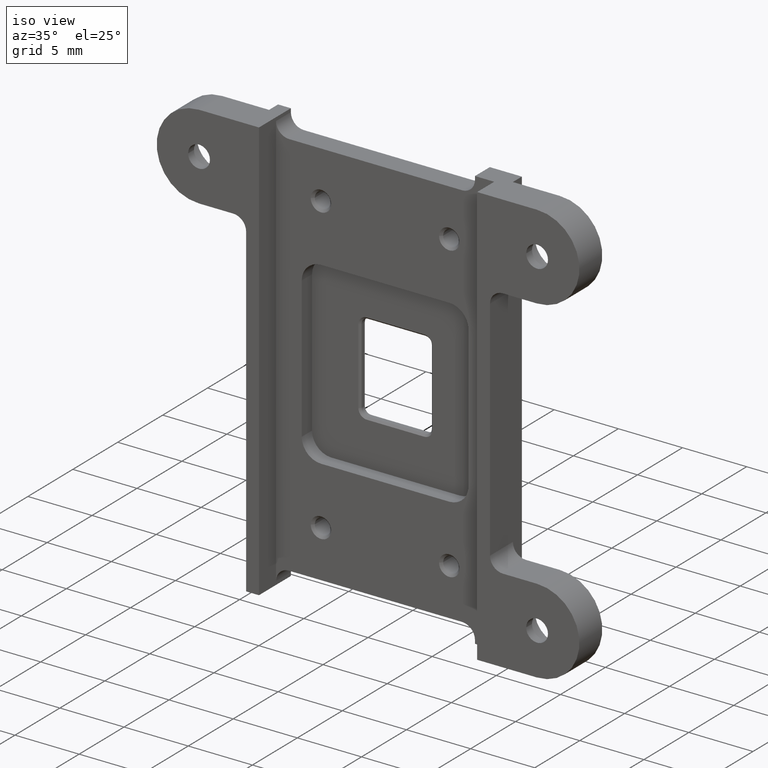
[diagram: clean part render]
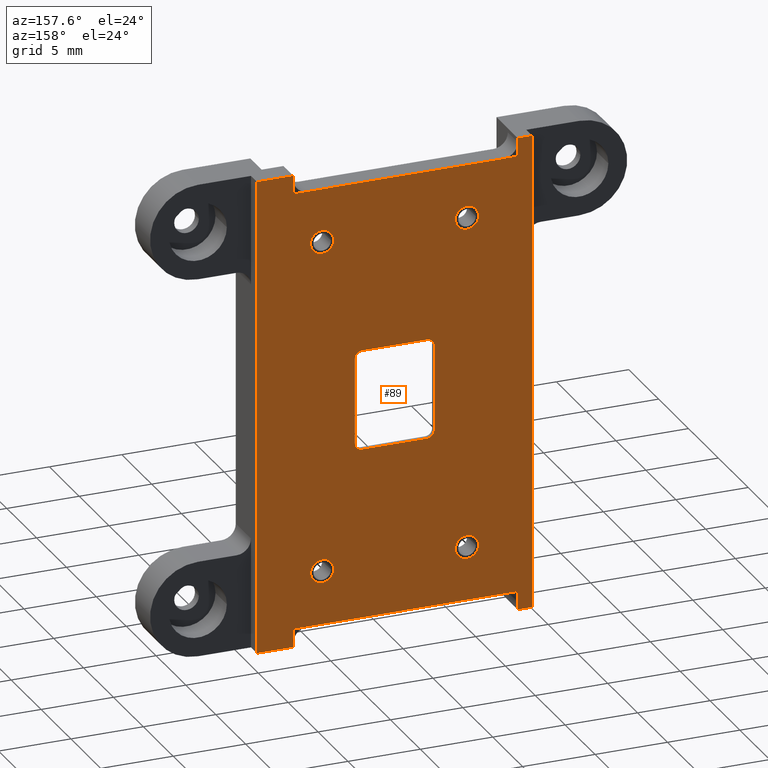
[diagram: tour spotlight — one face highlighted and labeled with its STEP entity id]
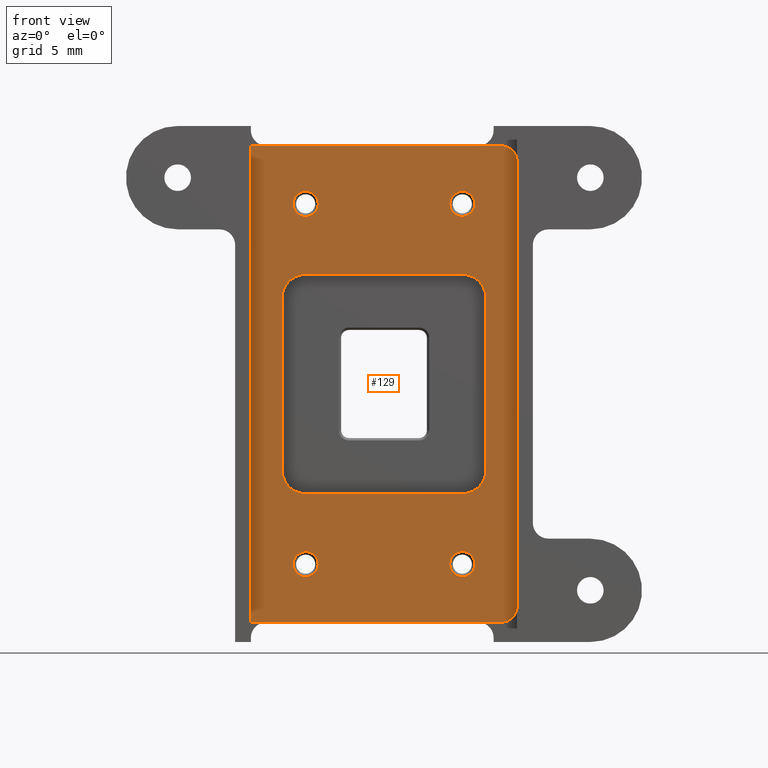
[diagram: tour spotlight — one face highlighted and labeled with its STEP entity id]
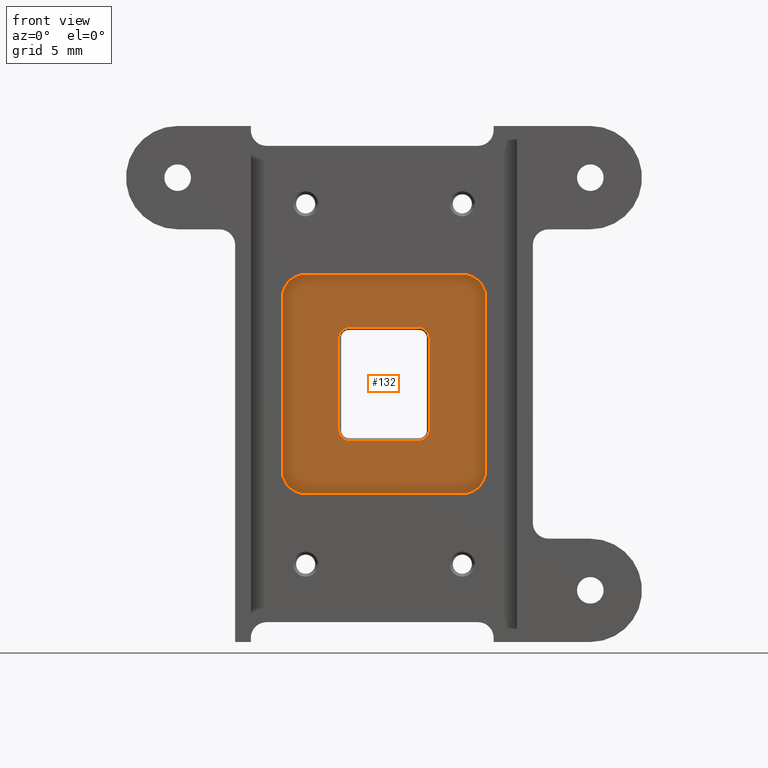
[diagram: tour spotlight — one face highlighted and labeled with its STEP entity id]
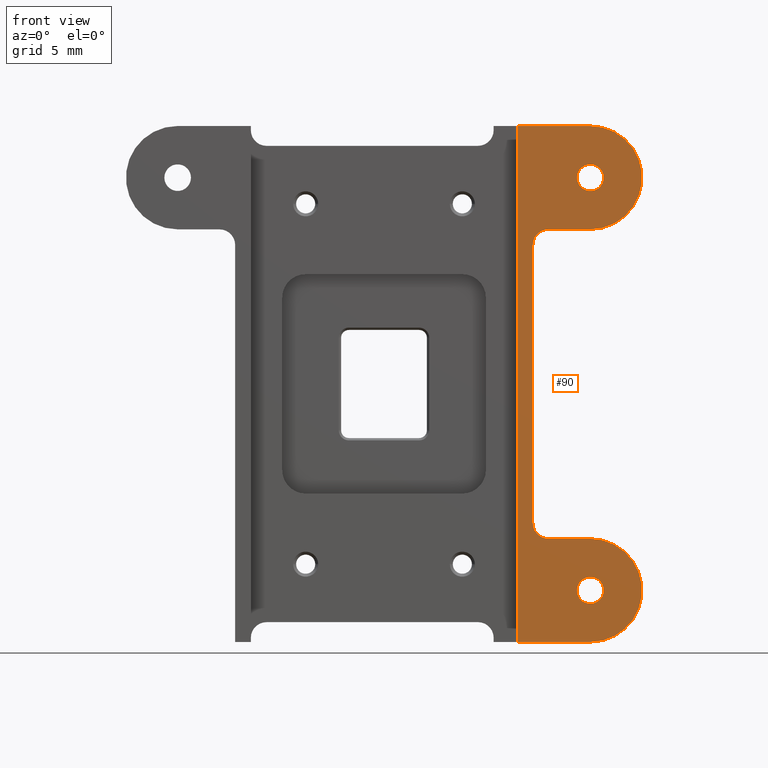
[diagram: tour spotlight — one face highlighted and labeled with its STEP entity id]
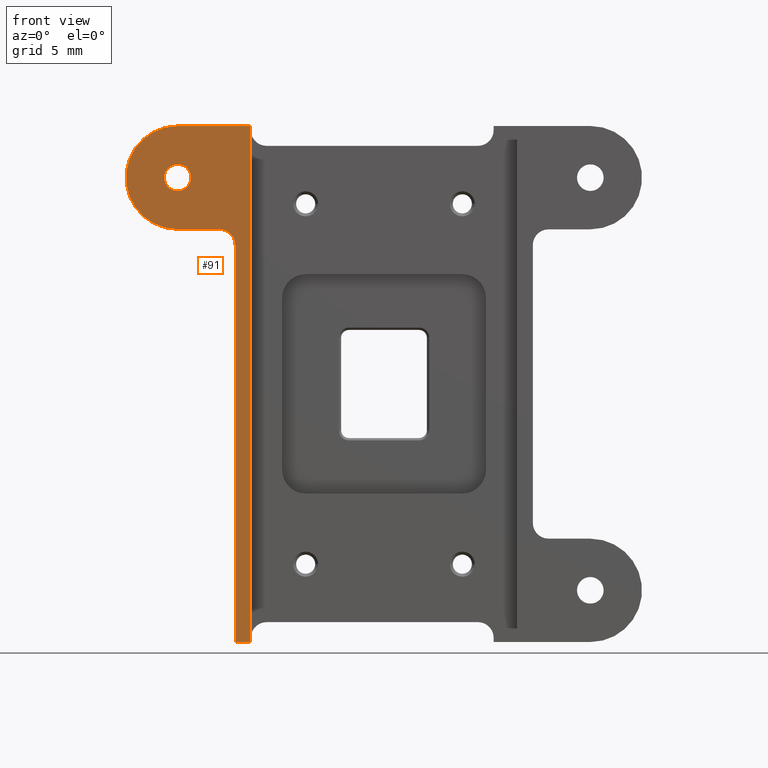
[diagram: tour spotlight — one face highlighted and labeled with its STEP entity id]
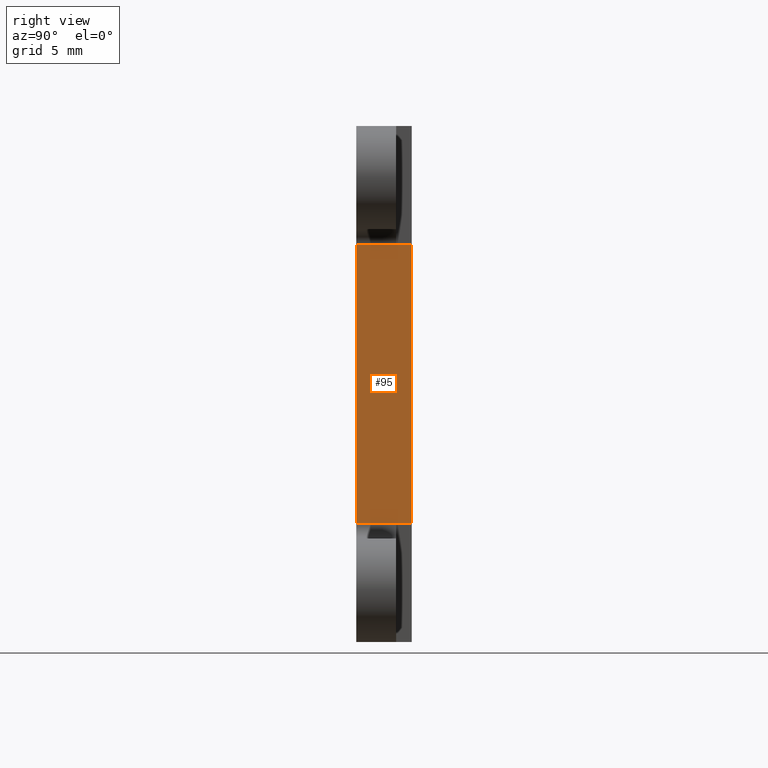
[diagram: tour spotlight — one face highlighted and labeled with its STEP entity id]
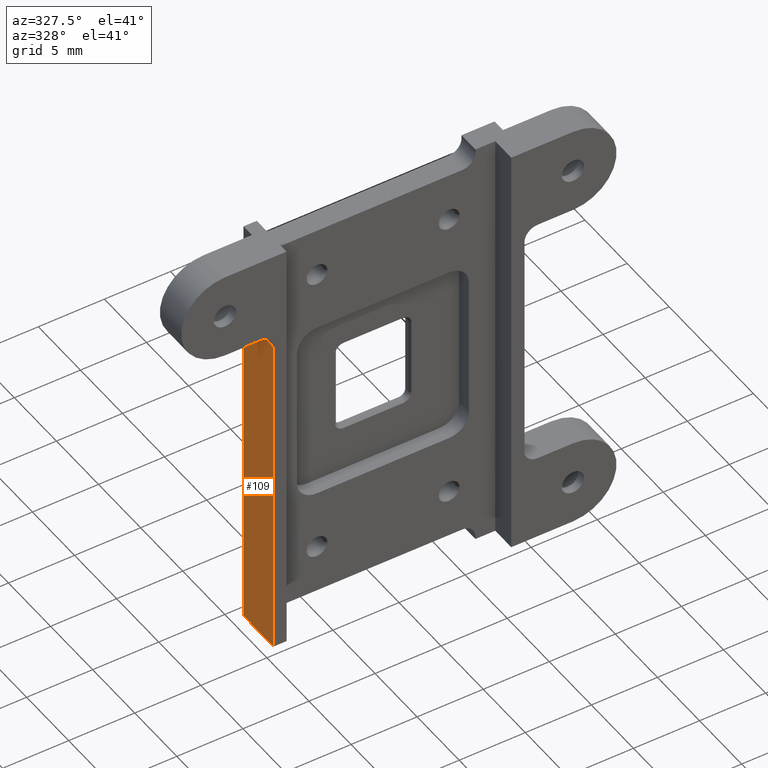
[diagram: tour spotlight — one face highlighted and labeled with its STEP entity id]
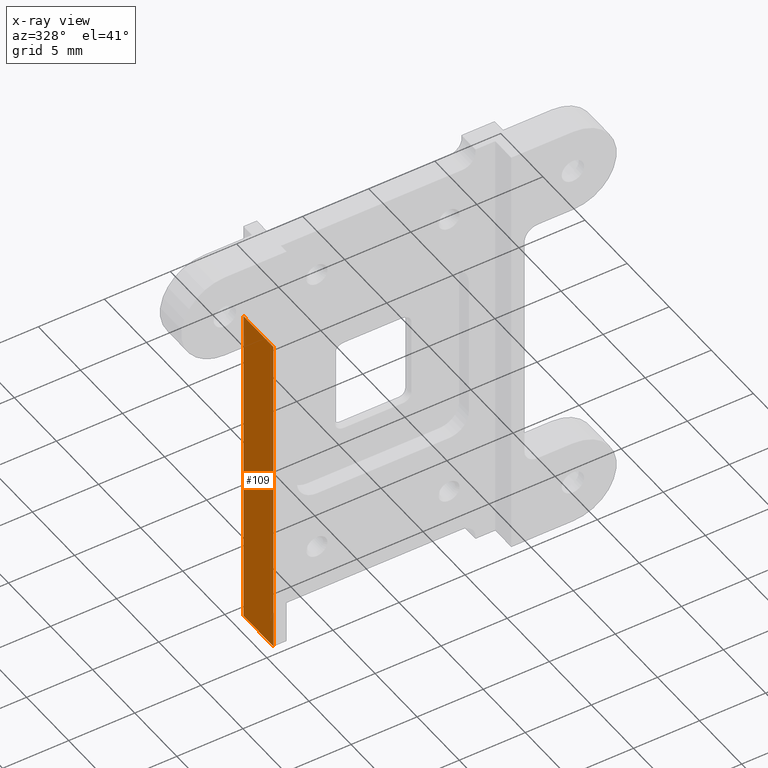
[diagram: x-ray of the same camera — body ghosted, this tour face saturated]
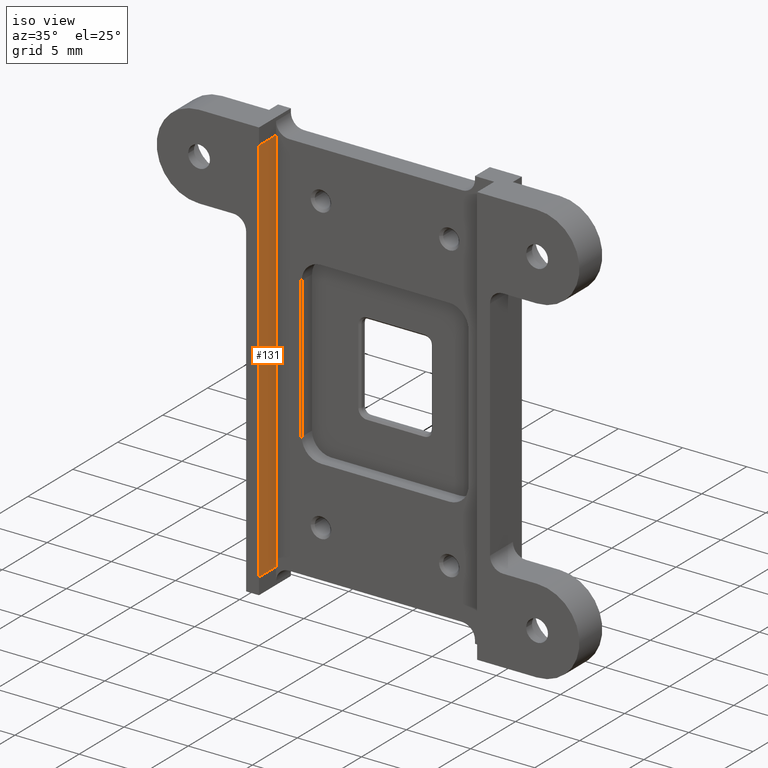
[diagram: tour spotlight — one face highlighted and labeled with its STEP entity id]
A machine part: a face-by-face anatomy tour. The part has 111 B-rep faces; the first image is the clean iso view, then the 8 largest visible faces are spotlighted one at a time (largest first), each with its STEP entity span.

Face 1 — auxiliary view, entity #89. In plain terms, the highlighted planar face has unit normal (0, 1, 0).
Definition (entity closure, byte-faithful):
#89=ADVANCED_FACE('',(#311,#312,#313,#314,#315,#200),#1040,.T.);
#200=FACE_OUTER_BOUND('',#340,.F.);
#311=FACE_BOUND('',#335,.F.);
#312=FACE_BOUND('',#336,.F.);
#313=FACE_BOUND('',#337,.F.);
#314=FACE_BOUND('',#338,.F.);
#315=FACE_BOUND('',#339,.F.);
#335=EDGE_LOOP('',(#470,#471,#472,#473,#474,#475,#476,#477));
#336=EDGE_LOOP('',(#478,#479));
#337=EDGE_LOOP('',(#480,#481));
#338=EDGE_LOOP('',(#482,#483));
#339=EDGE_LOOP('',(#484,#485));
#340=EDGE_LOOP('',(#486,#487,#488,#489,#490,#491,#492,#493,#494,#495,#496,
#497,#498,#499,#500,#501,#502,#503,#504,#505,#506,#507,#508));
#470=ORIENTED_EDGE('',*,*,#1621,.T.);
#471=ORIENTED_EDGE('',*,*,#1628,.T.);
#472=ORIENTED_EDGE('',*,*,#1627,.T.);
#473=ORIENTED_EDGE('',*,*,#1626,.T.);
#474=ORIENTED_EDGE('',*,*,#1625,.T.);
#475=ORIENTED_EDGE('',*,*,#1624,.T.);
#476=ORIENTED_EDGE('',*,*,#1623,.T.);
#477=ORIENTED_EDGE('',*,*,#1622,.T.);
#478=ORIENTED_EDGE('',*,*,#1602,.T.);
#479=ORIENTED_EDGE('',*,*,#1603,.T.);
#480=ORIENTED_EDGE('',*,*,#1600,.T.);
#481=ORIENTED_EDGE('',*,*,#1601,.T.);
#482=ORIENTED_EDGE('',*,*,#1598,.T.);
#483=ORIENTED_EDGE('',*,*,#1599,.T.);
#484=ORIENTED_EDGE('',*,*,#1596,.T.);
#485=ORIENTED_EDGE('',*,*,#1597,.T.);
#486=ORIENTED_EDGE('',*,*,#1629,.F.);
#487=ORIENTED_EDGE('',*,*,#1606,.T.);
#488=ORIENTED_EDGE('',*,*,#1630,.F.);
#489=ORIENTED_EDGE('',*,*,#1631,.F.);
#490=ORIENTED_EDGE('',*,*,#1613,.F.);
#491=ORIENTED_EDGE('',*,*,#1611,.F.);
#492=ORIENTED_EDGE('',*,*,#1612,.F.);
#493=ORIENTED_EDGE('',*,*,#1610,.F.);
#494=ORIENTED_EDGE('',*,*,#1608,.F.);
#495=ORIENTED_EDGE('',*,*,#1609,.F.);
#496=ORIENTED_EDGE('',*,*,#1632,.F.);
#497=ORIENTED_EDGE('',*,*,#1604,.T.);
#498=ORIENTED_EDGE('',*,*,#1633,.F.);
#499=ORIENTED_EDGE('',*,*,#1634,.F.);
#500=ORIENTED_EDGE('',*,*,#1635,.F.);
#501=ORIENTED_EDGE('',*,*,#1620,.F.);
#502=ORIENTED_EDGE('',*,*,#1618,.F.);
#503=ORIENTED_EDGE('',*,*,#1619,.F.);
#504=ORIENTED_EDGE('',*,*,#1617,.F.);
#505=ORIENTED_EDGE('',*,*,#1615,.F.);
#506=ORIENTED_EDGE('',*,*,#1616,.F.);
#507=ORIENTED_EDGE('',*,*,#1636,.F.);
#508=ORIENTED_EDGE('',*,*,#1605,.T.);
#1040=PLANE('',#2298);
#1230=LINE('',#3222,#1413);
#1231=LINE('',#3223,#1414);
#1232=LINE('',#3224,#1415);
#1234=LINE('',#3226,#1417);
#1235=LINE('',#3227,#1418);
#1236=LINE('',#3228,#1419);
#1237=LINE('',#3229,#1420);
#1238=LINE('',#3230,#1421);
#1239=LINE('',#3231,#1422);
#1241=LINE('',#3233,#1424);
#1242=LINE('',#3234,#1425);
#1243=LINE('',#3235,#1426);
#1244=LINE('',#3236,#1427);
#1245=LINE('',#3237,#1428);
#1246=LINE('',#3238,#1429);
#1247=LINE('',#3240,#1430);
#1248=LINE('',#3242,#1431);
#1249=LINE('',#3244,#1432);
#1250=LINE('',#3246,#1433);
#1251=LINE('',#3247,#1434);
#1252=LINE('',#3248,#1435);
#1253=LINE('',#3249,#1436);
#1254=LINE('',#3250,#1437);
#1255=LINE('',#3251,#1438);
#1256=LINE('',#3252,#1439);
#1257=LINE('',#3253,#1440);
#1258=LINE('',#3254,#1441);
#1413=VECTOR('',#2431,7.6000000000006);
#1414=VECTOR('',#2432,7.60000000000867);
#1415=VECTOR('',#2433,7.60000000000752);
#1417=VECTOR('',#2435,0.999999999964126);
#1418=VECTOR('',#2436,0.269863819262419);
#1419=VECTOR('',#2437,0.999999999964124);
#1420=VECTOR('',#2438,0.999999999950361);
#1421=VECTOR('',#2439,13.4999997469916);
#1422=VECTOR('',#2440,0.999999999950374);
#1424=VECTOR('',#2442,0.999999999992808);
#1425=VECTOR('',#2443,0.269859921078393);
#1426=VECTOR('',#2444,0.999999999992809);
#1427=VECTOR('',#2445,0.999999999997324);
#1428=VECTOR('',#2446,13.4999997471151);
#1429=VECTOR('',#2447,0.999999999997328);
#1430=VECTOR('',#2450,5.90199999999652);
#1431=VECTOR('',#2453,4.47699999999691);
#1432=VECTOR('',#2456,5.90200000000595);
#1433=VECTOR('',#2459,4.47699999999872);
#1434=VECTOR('',#2460,17.7397237402764);
#1435=VECTOR('',#2461,2.50000012787914);
#1436=VECTOR('',#2462,0.269863819275606);
#1437=VECTOR('',#2463,1.00000005878814);
#1438=VECTOR('',#2464,25.3397237402912);
#1439=VECTOR('',#2465,1.00000018701031);
#1440=VECTOR('',#2466,0.269859921075128);
#1441=VECTOR('',#2467,2.50000006587109);
#1596=EDGE_CURVE('',#2166,#2165,#1881,.T.);
#1597=EDGE_CURVE('',#2165,#2166,#1882,.T.);
#1598=EDGE_CURVE('',#2164,#2163,#1883,.T.);
#1599=EDGE_CURVE('',#2163,#2164,#1884,.T.);
#1600=EDGE_CURVE('',#2162,#2161,#1885,.T.);
#1601=EDGE_CURVE('',#2161,#2162,#1886,.T.);
#1602=EDGE_CURVE('',#2160,#2159,#1887,.T.);
#1603=EDGE_CURVE('',#2159,#2160,#1888,.T.);
#1604=EDGE_CURVE('',#2158,#2157,#1230,.T.);
#1605=EDGE_CURVE('',#2156,#2155,#1231,.T.);
#1606=EDGE_CURVE('',#2154,#2153,#1232,.T.);
#1608=EDGE_CURVE('',#2150,#2149,#1234,.T.);
#1609=EDGE_CURVE('',#2148,#2150,#1235,.T.);
#1610=EDGE_CURVE('',#2149,#2147,#1236,.T.);
#1611=EDGE_CURVE('',#2146,#2145,#1237,.T.);
#1612=EDGE_CURVE('',#2147,#2146,#1238,.T.);
#1613=EDGE_CURVE('',#2145,#2144,#1239,.T.);
#1615=EDGE_CURVE('',#2141,#2140,#1241,.T.);
#1616=EDGE_CURVE('',#2139,#2141,#1242,.T.);
#1617=EDGE_CURVE('',#2140,#2138,#1243,.T.);
#1618=EDGE_CURVE('',#2137,#2136,#1244,.T.);
#1619=EDGE_CURVE('',#2138,#2137,#1245,.T.);
#1620=EDGE_CURVE('',#2136,#2135,#1246,.T.);
#1621=EDGE_CURVE('',#2134,#2133,#1889,.T.);
#1622=EDGE_CURVE('',#2132,#2134,#1247,.T.);
#1623=EDGE_CURVE('',#2131,#2132,#1890,.T.);
#1624=EDGE_CURVE('',#2130,#2131,#1248,.T.);
#1625=EDGE_CURVE('',#2129,#2130,#1891,.T.);
#1626=EDGE_CURVE('',#2128,#2129,#1249,.T.);
#1627=EDGE_CURVE('',#2127,#2128,#1892,.T.);
#1628=EDGE_CURVE('',#2133,#2127,#1250,.T.);
#1629=EDGE_CURVE('',#2154,#2155,#1251,.T.);
#1630=EDGE_CURVE('',#2126,#2153,#1252,.T.);
#1631=EDGE_CURVE('',#2144,#2126,#1253,.T.);
#1632=EDGE_CURVE('',#2158,#2148,#1254,.T.);
#1633=EDGE_CURVE('',#2125,#2157,#1255,.T.);
#1634=EDGE_CURVE('',#2124,#2125,#1256,.T.);
#1635=EDGE_CURVE('',#2135,#2124,#1257,.T.);
#1636=EDGE_CURVE('',#2156,#2139,#1258,.T.);
#1881=CIRCLE('',#2196,0.8);
#1882=CIRCLE('',#2197,0.8);
#1883=CIRCLE('',#2198,0.8);
#1884=CIRCLE('',#2199,0.8);
#1885=CIRCLE('',#2200,0.8);
#1886=CIRCLE('',#2201,0.8);
#1887=CIRCLE('',#2202,0.8);
#1888=CIRCLE('',#2203,0.8);
#1889=CIRCLE('',#2204,0.5);
#1890=CIRCLE('',#2205,0.5);
#1891=CIRCLE('',#2206,0.5);
#1892=CIRCLE('',#2207,0.500000000000114);
#2124=VERTEX_POINT('',#3171);
#2125=VERTEX_POINT('',#3172);
#2126=VERTEX_POINT('',#3173);
#2127=VERTEX_POINT('',#3174);
#2128=VERTEX_POINT('',#3175);
#2129=VERTEX_POINT('',#3176);
#2130=VERTEX_POINT('',#3177);
#2131=VERTEX_POINT('',#3178);
#2132=VERTEX_POINT('',#3179);
#2133=VERTEX_POINT('',#3180);
#2134=VERTEX_POINT('',#3181);
#2135=VERTEX_POINT('',#3182);
#2136=VERTEX_POINT('',#3183);
#2137=VERTEX_POINT('',#3184);
#2138=VERTEX_POINT('',#3185);
#2139=VERTEX_POINT('',#3186);
#2140=VERTEX_POINT('',#3187);
#2141=VERTEX_POINT('',#3188);
#2144=VERTEX_POINT('',#3191);
#2145=VERTEX_POINT('',#3192);
#2146=VERTEX_POINT('',#3193);
#2147=VERTEX_POINT('',#3194);
#2148=VERTEX_POINT('',#3195);
#2149=VERTEX_POINT('',#3196);
#2150=VERTEX_POINT('',#3197);
#2153=VERTEX_POINT('',#3200);
#2154=VERTEX_POINT('',#3201);
#2155=VERTEX_POINT('',#3202);
#2156=VERTEX_POINT('',#3203);
#2157=VERTEX_POINT('',#3204);
#2158=VERTEX_POINT('',#3205);
#2159=VERTEX_POINT('',#3206);
#2160=VERTEX_POINT('',#3207);
#2161=VERTEX_POINT('',#3208);
#2162=VERTEX_POINT('',#3209);
#2163=VERTEX_POINT('',#3210);
#2164=VERTEX_POINT('',#3211);
#2165=VERTEX_POINT('',#3212);
#2166=VERTEX_POINT('',#3213);
#2196=AXIS2_PLACEMENT_3D('',#3214,#2415,#2416);
#2197=AXIS2_PLACEMENT_3D('',#3215,#2417,#2418);
#2198=AXIS2_PLACEMENT_3D('',#3216,#2419,#2420);
#2199=AXIS2_PLACEMENT_3D('',#3217,#2421,#2422);
#2200=AXIS2_PLACEMENT_3D('',#3218,#2423,#2424);
#2201=AXIS2_PLACEMENT_3D('',#3219,#2425,#2426);
#2202=AXIS2_PLACEMENT_3D('',#3220,#2427,#2428);
#2203=AXIS2_PLACEMENT_3D('',#3221,#2429,#2430);
#2204=AXIS2_PLACEMENT_3D('',#3239,#2448,#2449);
#2205=AXIS2_PLACEMENT_3D('',#3241,#2451,#2452);
#2206=AXIS2_PLACEMENT_3D('',#3243,#2454,#2455);
#2207=AXIS2_PLACEMENT_3D('',#3245,#2457,#2458);
#2298=AXIS2_PLACEMENT_3D('',#3499,#2802,#2803);
#2415=DIRECTION('',(0.,1.,0.));
#2416=DIRECTION('',(-1.,0.,0.));
#2417=DIRECTION('',(0.,1.,0.));
#2418=DIRECTION('',(1.,0.,0.));
#2419=DIRECTION('',(0.,1.,0.));
#2420=DIRECTION('',(-1.,0.,0.));
#2421=DIRECTION('',(0.,1.,0.));
#2422=DIRECTION('',(1.,0.,0.));
#2423=DIRECTION('',(0.,1.,0.));
#2424=DIRECTION('',(-1.,0.,0.));
#2425=DIRECTION('',(0.,1.,0.));
#2426=DIRECTION('',(1.,0.,0.));
#2427=DIRECTION('',(0.,1.,0.));
#2428=DIRECTION('',(-1.,0.,0.));
#2429=DIRECTION('',(0.,1.,0.));
#2430=DIRECTION('',(1.,0.,0.));
#2431=DIRECTION('',(0.,0.,-1.));
#2432=DIRECTION('',(0.,0.,1.));
#2433=DIRECTION('',(0.,0.,1.));
#2435=DIRECTION('',(0.,0.,-1.));
#2436=DIRECTION('',(0.,0.,-1.));
#2437=DIRECTION('',(1.,0.,0.));
#2438=DIRECTION('',(1.,0.,0.));
#2439=DIRECTION('',(1.,0.,0.));
#2440=DIRECTION('',(0.,0.,1.));
#2442=DIRECTION('',(0.,0.,1.));
#2443=DIRECTION('',(0.,0.,1.));
#2444=DIRECTION('',(-1.,0.,0.));
#2445=DIRECTION('',(-1.,0.,0.));
#2446=DIRECTION('',(-1.,0.,0.));
#2447=DIRECTION('',(0.,0.,-1.));
#2448=DIRECTION('',(0.,1.,0.));
#2449=DIRECTION('',(1.,0.,0.));
#2450=DIRECTION('',(0.,0.,-1.));
#2451=DIRECTION('',(0.,1.,0.));
#2452=DIRECTION('',(0.,0.,1.));
#2453=DIRECTION('',(1.,0.,0.));
#2454=DIRECTION('',(0.,1.,0.));
#2455=DIRECTION('',(-1.,0.,0.));
#2456=DIRECTION('',(0.,0.,1.));
#2457=DIRECTION('',(0.,1.,0.));
#2458=DIRECTION('',(0.,0.,-1.));
#2459=DIRECTION('',(-1.,0.,0.));
#2460=DIRECTION('',(0.,0.,-1.));
#2461=DIRECTION('',(1.,0.,0.));
#2462=DIRECTION('',(0.,0.,1.));
#2463=DIRECTION('',(1.,0.,0.));
#2464=DIRECTION('',(0.,0.,1.));
#2465=DIRECTION('',(-1.,0.,0.));
#2466=DIRECTION('',(0.,0.,-1.));
#2467=DIRECTION('',(-1.,0.,0.));
#2802=DIRECTION('',(0.,1.,0.));
#2803=DIRECTION('',(0.,0.,1.));
#3171=CARTESIAN_POINT('',(-8.49999235998875,-11.438,-16.4698595510271));
#3172=CARTESIAN_POINT('',(-9.49999254699906,-11.438,-16.4698595510271));
#3173=CARTESIAN_POINT('',(7.00000730417224,-11.438,16.469864189265));
#3174=CARTESIAN_POINT('',(-2.23849255519149,-11.438,-3.45099962147021));
#3175=CARTESIAN_POINT('',(-2.73849255519122,-11.438,-2.95099962147514));
#3176=CARTESIAN_POINT('',(-2.73849255519096,-11.438,2.95100037853081));
#3177=CARTESIAN_POINT('',(-2.23849255519013,-11.438,3.45100037853036));
#3178=CARTESIAN_POINT('',(2.23850744480678,-11.438,3.45100037853063));
#3179=CARTESIAN_POINT('',(2.73850744480799,-11.438,2.95100037852957));
#3180=CARTESIAN_POINT('',(2.23850744480726,-11.438,-3.45099962146998));
#3181=CARTESIAN_POINT('',(2.73850744480841,-11.438,-2.95099962146911));
#3182=CARTESIAN_POINT('',(-8.49999235998803,-11.438,-16.1999996299519));
#3183=CARTESIAN_POINT('',(-8.49999235998537,-11.438,-15.1999996299546));
#3184=CARTESIAN_POINT('',(-7.49999235998795,-11.438,-15.1999996299547));
#3185=CARTESIAN_POINT('',(6.0000073871271,-11.438,-15.1999996299544));
#3186=CARTESIAN_POINT('',(7.00000738712906,-11.438,-16.4698595510256));
#3187=CARTESIAN_POINT('',(7.00000738711991,-11.438,-15.1999996299544));
#3188=CARTESIAN_POINT('',(7.00000738712712,-11.438,-16.1999996299472));
#3191=CARTESIAN_POINT('',(7.0000072622611,-11.438,16.2000003699894));
#3192=CARTESIAN_POINT('',(7.0000072622115,-11.438,15.200000370039));
#3193=CARTESIAN_POINT('',(6.00000726226138,-11.438,15.2000003700386));
#3194=CARTESIAN_POINT('',(-7.4999924847305,-11.438,15.2000003700384));
#3195=CARTESIAN_POINT('',(-8.49999248589713,-11.438,16.469864189265));
#3196=CARTESIAN_POINT('',(-8.49999248469462,-11.438,15.2000003700384));
#3197=CARTESIAN_POINT('',(-8.49999248473056,-11.438,16.2000003700026));
#3200=CARTESIAN_POINT('',(9.50000745300025,-11.438,16.469864189266));
#3201=CARTESIAN_POINT('',(9.50000745300025,-11.438,8.86986418925905));
#3202=CARTESIAN_POINT('',(9.50000745300015,-11.438,-8.86985955101737));
#3203=CARTESIAN_POINT('',(9.50000745300015,-11.438,-16.4698595510258));
#3204=CARTESIAN_POINT('',(-9.49999254699907,-11.438,8.86986418926248));
#3205=CARTESIAN_POINT('',(-9.49999254699907,-11.438,16.4698641892646));
#3206=CARTESIAN_POINT('',(-4.2,-11.438,11.4999999999994));
#3207=CARTESIAN_POINT('',(-5.8,-11.438,11.4999999999994));
#3208=CARTESIAN_POINT('',(5.8,-11.438,11.4999999999994));
#3209=CARTESIAN_POINT('',(4.2,-11.438,11.4999999999994));
#3210=CARTESIAN_POINT('',(5.80000000000001,-11.438,-11.5000000000005));
#3211=CARTESIAN_POINT('',(4.20000000000001,-11.438,-11.5000000000005));
#3212=CARTESIAN_POINT('',(-4.19999999999999,-11.438,-11.5000000000005));
#3213=CARTESIAN_POINT('',(-5.79999999999999,-11.438,-11.5000000000005));
#3214=CARTESIAN_POINT('',(-4.99999999999999,-11.438,-11.5000000000005));
#3215=CARTESIAN_POINT('',(-4.99999999999999,-11.438,-11.5000000000005));
#3216=CARTESIAN_POINT('',(5.00000000000001,-11.438,-11.5000000000005));
#3217=CARTESIAN_POINT('',(5.00000000000001,-11.438,-11.5000000000005));
#3218=CARTESIAN_POINT('',(5.,-11.438,11.4999999999994));
#3219=CARTESIAN_POINT('',(5.,-11.438,11.4999999999994));
#3220=CARTESIAN_POINT('',(-5.,-11.438,11.4999999999994));
#3221=CARTESIAN_POINT('',(-5.,-11.438,11.4999999999994));
#3222=CARTESIAN_POINT('',(-9.49999254699907,-11.438,16.4698641892647));
#3223=CARTESIAN_POINT('',(9.50000745300015,-11.438,-16.469859551026));
#3224=CARTESIAN_POINT('',(9.50000745300026,-11.438,8.86986418925905));
#3226=CARTESIAN_POINT('',(-8.49999248473054,-11.438,16.2000003700026));
#3227=CARTESIAN_POINT('',(-8.49999248474023,-11.438,16.469864189265));
#3228=CARTESIAN_POINT('',(-8.49999248469462,-11.438,15.2000003700384));
#3229=CARTESIAN_POINT('',(6.00000726226114,-11.438,15.200000370039));
#3230=CARTESIAN_POINT('',(-7.4999924847305,-11.438,15.2000003700385));
#3231=CARTESIAN_POINT('',(7.0000072622115,-11.438,15.200000370039));
#3233=CARTESIAN_POINT('',(7.00000738712712,-11.438,-16.1999996299472));
#3234=CARTESIAN_POINT('',(7.00000738712906,-11.438,-16.4698595510256));
#3235=CARTESIAN_POINT('',(7.00000738711991,-11.438,-15.1999996299544));
#3236=CARTESIAN_POINT('',(-7.49999235998804,-11.438,-15.1999996299546));
#3237=CARTESIAN_POINT('',(6.0000073871271,-11.438,-15.1999996299544));
#3238=CARTESIAN_POINT('',(-8.49999235998537,-11.438,-15.1999996299546));
#3239=CARTESIAN_POINT('',(2.23850744480837,-11.438,-2.95099962147002));
#3240=CARTESIAN_POINT('',(2.73850744480814,-11.438,2.951000378529));
#3241=CARTESIAN_POINT('',(2.23850744480769,-11.438,2.9510003785307));
#3242=CARTESIAN_POINT('',(-2.23849255519013,-11.438,3.45100037853036));
#3243=CARTESIAN_POINT('',(-2.23849255519104,-11.438,2.95100037853036));
#3244=CARTESIAN_POINT('',(-2.73849255519126,-11.438,-2.95099962147514));
#3245=CARTESIAN_POINT('',(-2.23849255519115,-11.438,-2.95099962147014));
#3246=CARTESIAN_POINT('',(2.23850744480724,-11.438,-3.45099962146991));
#3247=CARTESIAN_POINT('',(9.50000745300025,-11.438,8.86986418925905));
#3248=CARTESIAN_POINT('',(7.00000732512112,-11.438,16.469864189265));
#3249=CARTESIAN_POINT('',(7.0000072622611,-11.438,16.2000003699894));
#3250=CARTESIAN_POINT('',(-9.49999254699907,-11.438,16.4698641892647));
#3251=CARTESIAN_POINT('',(-9.49999254699906,-11.438,-16.4698595510271));
#3252=CARTESIAN_POINT('',(-8.49999235998875,-11.438,-16.4698595510271));
#3253=CARTESIAN_POINT('',(-8.49999235998803,-11.438,-16.1999996299519));
#3254=CARTESIAN_POINT('',(9.50000745300015,-11.438,-16.469859551026));
#3499=CARTESIAN_POINT('',(-16.8033080754719,-11.438,-16.8033112828419));

Face 2 — front view, entity #129. In plain terms, the highlighted planar face has unit normal (0, -1, 0).
Definition (entity closure, byte-faithful):
#129=ADVANCED_FACE('',(#319,#320,#321,#322,#323,#240),#1064,.T.);
#240=FACE_OUTER_BOUND('',#388,.F.);
#319=FACE_BOUND('',#383,.F.);
#320=FACE_BOUND('',#384,.F.);
#321=FACE_BOUND('',#385,.F.);
#322=FACE_BOUND('',#386,.F.);
#323=FACE_BOUND('',#387,.F.);
#383=EDGE_LOOP('',(#704,#705));
#384=EDGE_LOOP('',(#706,#707));
#385=EDGE_LOOP('',(#708,#709));
#386=EDGE_LOOP('',(#710,#711));
#387=EDGE_LOOP('',(#712,#713,#714,#715,#716,#717,#718,#719));
#388=EDGE_LOOP('',(#720,#721,#722,#723,#724,#725,#726,#727,#728,#729,#730,
#731));
#704=ORIENTED_EDGE('',*,*,#1758,.F.);
#705=ORIENTED_EDGE('',*,*,#1759,.F.);
#706=ORIENTED_EDGE('',*,*,#1760,.F.);
#707=ORIENTED_EDGE('',*,*,#1761,.F.);
#708=ORIENTED_EDGE('',*,*,#1762,.F.);
#709=ORIENTED_EDGE('',*,*,#1763,.F.);
#710=ORIENTED_EDGE('',*,*,#1764,.F.);
#711=ORIENTED_EDGE('',*,*,#1765,.F.);
#712=ORIENTED_EDGE('',*,*,#1775,.F.);
#713=ORIENTED_EDGE('',*,*,#1774,.F.);
#714=ORIENTED_EDGE('',*,*,#1781,.F.);
#715=ORIENTED_EDGE('',*,*,#1780,.F.);
#716=ORIENTED_EDGE('',*,*,#1779,.F.);
#717=ORIENTED_EDGE('',*,*,#1778,.F.);
#718=ORIENTED_EDGE('',*,*,#1777,.F.);
#719=ORIENTED_EDGE('',*,*,#1776,.F.);
#720=ORIENTED_EDGE('',*,*,#1767,.T.);
#721=ORIENTED_EDGE('',*,*,#1782,.F.);
#722=ORIENTED_EDGE('',*,*,#1769,.T.);
#723=ORIENTED_EDGE('',*,*,#1768,.F.);
#724=ORIENTED_EDGE('',*,*,#1772,.F.);
#725=ORIENTED_EDGE('',*,*,#1614,.F.);
#726=ORIENTED_EDGE('',*,*,#1773,.F.);
#727=ORIENTED_EDGE('',*,*,#1783,.F.);
#728=ORIENTED_EDGE('',*,*,#1770,.F.);
#729=ORIENTED_EDGE('',*,*,#1607,.F.);
#730=ORIENTED_EDGE('',*,*,#1771,.F.);
#731=ORIENTED_EDGE('',*,*,#1766,.F.);
#1064=PLANE('',#2338);
#1233=LINE('',#3225,#1416);
#1240=LINE('',#3232,#1423);
#1346=LINE('',#3384,#1529);
#1347=LINE('',#3386,#1530);
#1348=LINE('',#3388,#1531);
#1349=LINE('',#3389,#1532);
#1350=LINE('',#3390,#1533);
#1351=LINE('',#3391,#1534);
#1352=LINE('',#3393,#1535);
#1353=LINE('',#3395,#1536);
#1354=LINE('',#3397,#1537);
#1355=LINE('',#3399,#1538);
#1356=LINE('',#3400,#1539);
#1357=LINE('',#3401,#1540);
#1416=VECTOR('',#2434,13.4999997469916);
#1423=VECTOR('',#2441,13.4999997471151);
#1529=VECTOR('',#2639,0.500000190789205);
#1530=VECTOR('',#2642,0.500000065880467);
#1531=VECTOR('',#2645,1.00000006226841);
#1532=VECTOR('',#2646,0.999999999950369);
#1533=VECTOR('',#2647,0.999999999992809);
#1534=VECTOR('',#2648,1.00000018701128);
#1535=VECTOR('',#2651,10.0000000000001);
#1536=VECTOR('',#2654,11.0000000000105);
#1537=VECTOR('',#2657,10.0000000000073);
#1538=VECTOR('',#2660,11.0000000000102);
#1539=VECTOR('',#2661,28.4000000000015);
#1540=VECTOR('',#2662,30.400000000003);
#1607=EDGE_CURVE('',#2152,#2151,#1233,.T.);
#1614=EDGE_CURVE('',#2143,#2142,#1240,.T.);
#1758=EDGE_CURVE('',#2046,#2045,#1927,.T.);
#1759=EDGE_CURVE('',#2045,#2046,#1928,.T.);
#1760=EDGE_CURVE('',#2044,#2043,#1929,.T.);
#1761=EDGE_CURVE('',#2043,#2044,#1930,.T.);
#1762=EDGE_CURVE('',#2042,#2041,#1931,.T.);
#1763=EDGE_CURVE('',#2041,#2042,#1932,.T.);
#1764=EDGE_CURVE('',#2040,#2039,#1933,.T.);
#1765=EDGE_CURVE('',#2039,#2040,#1934,.T.);
#1766=EDGE_CURVE('',#2038,#2037,#1346,.T.);
#1767=EDGE_CURVE('',#2038,#2036,#1935,.T.);
#1768=EDGE_CURVE('',#2035,#2034,#1347,.T.);
#1769=EDGE_CURVE('',#2033,#2034,#1936,.T.);
#1770=EDGE_CURVE('',#2151,#2086,#1348,.T.);
#1771=EDGE_CURVE('',#2037,#2152,#1349,.T.);
#1772=EDGE_CURVE('',#2142,#2035,#1350,.T.);
#1773=EDGE_CURVE('',#2084,#2143,#1351,.T.);
#1774=EDGE_CURVE('',#2032,#2031,#1937,.T.);
#1775=EDGE_CURVE('',#2031,#2030,#1352,.T.);
#1776=EDGE_CURVE('',#2030,#2029,#1938,.T.);
#1777=EDGE_CURVE('',#2029,#2028,#1353,.T.);
#1778=EDGE_CURVE('',#2028,#2027,#1939,.T.);
#1779=EDGE_CURVE('',#2027,#2026,#1354,.T.);
#1780=EDGE_CURVE('',#2026,#2025,#1940,.T.);
#1781=EDGE_CURVE('',#2025,#2032,#1355,.T.);
#1782=EDGE_CURVE('',#2033,#2036,#1356,.T.);
#1783=EDGE_CURVE('',#2086,#2084,#1357,.T.);
#1927=CIRCLE('',#2242,0.800000000000002);
#1928=CIRCLE('',#2243,0.800000000000002);
#1929=CIRCLE('',#2244,0.799999999999998);
#1930=CIRCLE('',#2245,0.799999999999998);
#1931=CIRCLE('',#2246,0.799999999999995);
#1932=CIRCLE('',#2247,0.799999999999995);
#1933=CIRCLE('',#2248,0.799999999999998);
#1934=CIRCLE('',#2249,0.799999999999998);
#1935=CIRCLE('',#2250,1.);
#1936=CIRCLE('',#2251,1.);
#1937=CIRCLE('',#2252,1.5);
#1938=CIRCLE('',#2253,1.5);
#1939=CIRCLE('',#2254,1.5);
#1940=CIRCLE('',#2255,1.5);
#2025=VERTEX_POINT('',#3072);
#2026=VERTEX_POINT('',#3073);
#2027=VERTEX_POINT('',#3074);
#2028=VERTEX_POINT('',#3075);
#2029=VERTEX_POINT('',#3076);
#2030=VERTEX_POINT('',#3077);
#2031=VERTEX_POINT('',#3078);
#2032=VERTEX_POINT('',#3079);
#2033=VERTEX_POINT('',#3080);
#2034=VERTEX_POINT('',#3081);
#2035=VERTEX_POINT('',#3082);
#2036=VERTEX_POINT('',#3083);
#2037=VERTEX_POINT('',#3084);
#2038=VERTEX_POINT('',#3085);
#2039=VERTEX_POINT('',#3086);
#2040=VERTEX_POINT('',#3087);
#2041=VERTEX_POINT('',#3088);
#2042=VERTEX_POINT('',#3089);
#2043=VERTEX_POINT('',#3090);
#2044=VERTEX_POINT('',#3091);
#2045=VERTEX_POINT('',#3092);
#2046=VERTEX_POINT('',#3093);
#2084=VERTEX_POINT('',#3131);
#2086=VERTEX_POINT('',#3133);
#2142=VERTEX_POINT('',#3189);
#2143=VERTEX_POINT('',#3190);
#2151=VERTEX_POINT('',#3198);
#2152=VERTEX_POINT('',#3199);
#2242=AXIS2_PLACEMENT_3D('',#3376,#2623,#2624);
#2243=AXIS2_PLACEMENT_3D('',#3377,#2625,#2626);
#2244=AXIS2_PLACEMENT_3D('',#3378,#2627,#2628);
#2245=AXIS2_PLACEMENT_3D('',#3379,#2629,#2630);
#2246=AXIS2_PLACEMENT_3D('',#3380,#2631,#2632);
#2247=AXIS2_PLACEMENT_3D('',#3381,#2633,#2634);
#2248=AXIS2_PLACEMENT_3D('',#3382,#2635,#2636);
#2249=AXIS2_PLACEMENT_3D('',#3383,#2637,#2638);
#2250=AXIS2_PLACEMENT_3D('',#3385,#2640,#2641);
#2251=AXIS2_PLACEMENT_3D('',#3387,#2643,#2644);
#2252=AXIS2_PLACEMENT_3D('',#3392,#2649,#2650);
#2253=AXIS2_PLACEMENT_3D('',#3394,#2652,#2653);
#2254=AXIS2_PLACEMENT_3D('',#3396,#2655,#2656);
#2255=AXIS2_PLACEMENT_3D('',#3398,#2658,#2659);
#2338=AXIS2_PLACEMENT_3D('',#3539,#2882,#2883);
#2434=DIRECTION('',(-1.,0.,0.));
#2441=DIRECTION('',(1.,0.,0.));
#2623=DIRECTION('',(0.,1.,0.));
#2624=DIRECTION('',(-1.,0.,0.));
#2625=DIRECTION('',(0.,1.,0.));
#2626=DIRECTION('',(1.,0.,0.));
#2627=DIRECTION('',(0.,1.,0.));
#2628=DIRECTION('',(-1.,0.,0.));
#2629=DIRECTION('',(0.,1.,0.));
#2630=DIRECTION('',(1.,0.,0.));
#2631=DIRECTION('',(0.,1.,0.));
#2632=DIRECTION('',(-1.,0.,0.));
#2633=DIRECTION('',(0.,1.,0.));
#2634=DIRECTION('',(1.,0.,0.));
#2635=DIRECTION('',(0.,1.,0.));
#2636=DIRECTION('',(-1.,0.,0.));
#2637=DIRECTION('',(0.,1.,0.));
#2638=DIRECTION('',(1.,0.,0.));
#2639=DIRECTION('',(-1.,0.,0.));
#2640=DIRECTION('',(0.,1.,0.));
#2641=DIRECTION('',(0.,0.,1.));
#2642=DIRECTION('',(1.,0.,0.));
#2643=DIRECTION('',(0.,1.,0.));
#2644=DIRECTION('',(1.,0.,0.));
#2645=DIRECTION('',(-1.,0.,0.));
#2646=DIRECTION('',(-1.,0.,0.));
#2647=DIRECTION('',(1.,0.,0.));
#2648=DIRECTION('',(1.,0.,0.));
#2649=DIRECTION('',(0.,1.,0.));
#2650=DIRECTION('',(1.,0.,0.));
#2651=DIRECTION('',(-1.,0.,0.));
#2652=DIRECTION('',(0.,1.,0.));
#2653=DIRECTION('',(0.,0.,-1.));
#2654=DIRECTION('',(0.,0.,1.));
#2655=DIRECTION('',(0.,1.,0.));
#2656=DIRECTION('',(-1.,0.,0.));
#2657=DIRECTION('',(1.,0.,0.));
#2658=DIRECTION('',(0.,1.,0.));
#2659=DIRECTION('',(0.,0.,1.));
#2660=DIRECTION('',(0.,0.,-1.));
#2661=DIRECTION('',(0.,0.,1.));
#2662=DIRECTION('',(0.,0.,-1.));
#2882=DIRECTION('',(0.,-1.,0.));
#2883=DIRECTION('',(0.,0.,1.));
#3072=CARTESIAN_POINT('',(6.50000744480832,-13.088,5.50000037853491));
#3073=CARTESIAN_POINT('',(5.00000744481037,-13.088,7.00000037853046));
#3074=CARTESIAN_POINT('',(-4.99999255519691,-13.088,7.00000037853068));
#3075=CARTESIAN_POINT('',(-6.49999255519168,-13.088,5.50000037853193));
#3076=CARTESIAN_POINT('',(-6.49999255519133,-13.088,-5.49999962147357));
#3077=CARTESIAN_POINT('',(-4.99999255518963,-13.088,-6.99999962146955));
#3078=CARTESIAN_POINT('',(5.0000074448105,-13.088,-6.99999962146969));
#3079=CARTESIAN_POINT('',(6.50000744480848,-13.088,-5.49999962147534));
#3080=CARTESIAN_POINT('',(8.50000742006468,-13.088,-14.1999996214716));
#3081=CARTESIAN_POINT('',(7.5000074529981,-13.088,-15.1999996214713));
#3082=CARTESIAN_POINT('',(7.00000738711991,-13.088,-15.1999996271267));
#3083=CARTESIAN_POINT('',(8.50000738906093,-13.088,14.2000003785291));
#3084=CARTESIAN_POINT('',(7.0000072622115,-13.088,15.20000037287));
#3085=CARTESIAN_POINT('',(7.5000074530019,-13.088,15.2000003785321));
#3086=CARTESIAN_POINT('',(-4.2,-13.088,11.4999999999994));
#3087=CARTESIAN_POINT('',(-5.8,-13.088,11.4999999999994));
#3088=CARTESIAN_POINT('',(5.8,-13.088,11.4999999999994));
#3089=CARTESIAN_POINT('',(4.20000000000001,-13.088,11.4999999999994));
#3090=CARTESIAN_POINT('',(5.80000000000001,-13.088,-11.5000000000005));
#3091=CARTESIAN_POINT('',(4.20000000000001,-13.088,-11.5000000000005));
#3092=CARTESIAN_POINT('',(-4.19999999999998,-13.088,-11.5000000000005));
#3093=CARTESIAN_POINT('',(-5.79999999999999,-13.088,-11.5000000000005));
#3131=CARTESIAN_POINT('',(-8.49999245349235,-13.088,-15.1999996278338));
#3133=CARTESIAN_POINT('',(-8.49999251584677,-13.088,15.2000003721618));
#3189=CARTESIAN_POINT('',(6.0000073871271,-13.088,-15.1999996299544));
#3190=CARTESIAN_POINT('',(-7.49999235998795,-13.088,-15.1999996299547));
#3198=CARTESIAN_POINT('',(-7.4999924847305,-13.088,15.2000003700385));
#3199=CARTESIAN_POINT('',(6.00000726226138,-13.088,15.2000003700386));
#3225=CARTESIAN_POINT('',(6.00000726226113,-13.088,15.200000370039));
#3232=CARTESIAN_POINT('',(-7.49999235998804,-13.088,-15.1999996299546));
#3376=CARTESIAN_POINT('',(-4.99999999999999,-13.088,-11.5000000000005));
#3377=CARTESIAN_POINT('',(-4.99999999999999,-13.088,-11.5000000000005));
#3378=CARTESIAN_POINT('',(5.00000000000001,-13.088,-11.5000000000005));
#3379=CARTESIAN_POINT('',(5.00000000000001,-13.088,-11.5000000000005));
#3380=CARTESIAN_POINT('',(5.,-13.088,11.4999999999994));
#3381=CARTESIAN_POINT('',(5.,-13.088,11.4999999999994));
#3382=CARTESIAN_POINT('',(-5.,-13.088,11.4999999999994));
#3383=CARTESIAN_POINT('',(-5.,-13.088,11.4999999999994));
#3384=CARTESIAN_POINT('',(7.50000745300071,-13.088,15.2000003785321));
#3385=CARTESIAN_POINT('',(7.50000745300071,-13.088,14.2000003785321));
#3386=CARTESIAN_POINT('',(7.00000738711991,-13.088,-15.1999996214713));
#3387=CARTESIAN_POINT('',(7.50000745300038,-13.088,-14.1999996214713));
#3388=CARTESIAN_POINT('',(-7.4999924847305,-13.088,15.2000003700385));
#3389=CARTESIAN_POINT('',(7.0000072622115,-13.088,15.200000370039));
#3390=CARTESIAN_POINT('',(6.0000073871271,-13.088,-15.1999996299544));
#3391=CARTESIAN_POINT('',(-8.49999254699932,-13.088,-15.1999996299546));
#3392=CARTESIAN_POINT('',(5.00000744480844,-13.088,-5.49999962146954));
#3393=CARTESIAN_POINT('',(5.00000744481049,-13.088,-6.99999962146977));
#3394=CARTESIAN_POINT('',(-4.99999255519133,-13.088,-5.49999962146955));
#3395=CARTESIAN_POINT('',(-6.49999255519134,-13.088,-5.49999962147558));
#3396=CARTESIAN_POINT('',(-4.99999255519168,-13.088,5.50000037853045));
#3397=CARTESIAN_POINT('',(-4.99999255519691,-13.088,7.0000003785308));
#3398=CARTESIAN_POINT('',(5.00000744480832,-13.088,5.50000037853046));
#3399=CARTESIAN_POINT('',(6.50000744480832,-13.088,5.50000037853489));
#3400=CARTESIAN_POINT('',(8.50000745300015,-13.088,-14.1999996214723));
#3401=CARTESIAN_POINT('',(-8.49999254699891,-13.088,15.2000003785319));
#3539=CARTESIAN_POINT('',(-8.80400625165181,-13.088,-15.5040133261238));

Face 3 — front view, entity #132. In plain terms, the highlighted planar face has unit normal (0, -1, 0).
Definition (entity closure, byte-faithful):
#132=ADVANCED_FACE('',(#324,#243),#1067,.T.);
#243=FACE_OUTER_BOUND('',#392,.F.);
#324=FACE_BOUND('',#391,.F.);
#391=EDGE_LOOP('',(#741,#742,#743,#744,#745,#746,#747,#748,#749,#750,#751,
#752));
#392=EDGE_LOOP('',(#753,#754,#755,#756,#757,#758,#759,#760));
#741=ORIENTED_EDGE('',*,*,#1797,.F.);
#742=ORIENTED_EDGE('',*,*,#1786,.F.);
#743=ORIENTED_EDGE('',*,*,#1787,.F.);
#744=ORIENTED_EDGE('',*,*,#1788,.F.);
#745=ORIENTED_EDGE('',*,*,#1789,.F.);
#746=ORIENTED_EDGE('',*,*,#1790,.F.);
#747=ORIENTED_EDGE('',*,*,#1791,.F.);
#748=ORIENTED_EDGE('',*,*,#1792,.F.);
#749=ORIENTED_EDGE('',*,*,#1793,.F.);
#750=ORIENTED_EDGE('',*,*,#1794,.F.);
#751=ORIENTED_EDGE('',*,*,#1795,.F.);
#752=ORIENTED_EDGE('',*,*,#1796,.F.);
#753=ORIENTED_EDGE('',*,*,#1798,.T.);
#754=ORIENTED_EDGE('',*,*,#1805,.T.);
#755=ORIENTED_EDGE('',*,*,#1804,.T.);
#756=ORIENTED_EDGE('',*,*,#1803,.T.);
#757=ORIENTED_EDGE('',*,*,#1802,.T.);
#758=ORIENTED_EDGE('',*,*,#1801,.T.);
#759=ORIENTED_EDGE('',*,*,#1800,.T.);
#760=ORIENTED_EDGE('',*,*,#1799,.T.);
#1067=PLANE('',#2341);
#1360=LINE('',#3404,#1543);
#1361=LINE('',#3407,#1544);
#1362=LINE('',#3410,#1545);
#1363=LINE('',#3413,#1546);
#1364=LINE('',#3416,#1547);
#1365=LINE('',#3418,#1548);
#1366=LINE('',#3420,#1549);
#1367=LINE('',#3422,#1550);
#1543=VECTOR('',#2665,4.47699999999634);
#1544=VECTOR('',#2670,5.90200000000744);
#1545=VECTOR('',#2675,4.47699999999845);
#1546=VECTOR('',#2680,5.90200000000057);
#1547=VECTOR('',#2685,11.0000000000102);
#1548=VECTOR('',#2688,10.0000000000073);
#1549=VECTOR('',#2691,11.0000000000105);
#1550=VECTOR('',#2694,10.0000000000001);
#1786=EDGE_CURVE('',#2024,#2023,#1360,.T.);
#1787=EDGE_CURVE('',#2022,#2024,#1941,.T.);
#1788=EDGE_CURVE('',#2021,#2022,#1942,.T.);
#1789=EDGE_CURVE('',#2020,#2021,#1361,.T.);
#1790=EDGE_CURVE('',#2019,#2020,#1943,.T.);
#1791=EDGE_CURVE('',#2018,#2019,#1944,.T.);
#1792=EDGE_CURVE('',#2017,#2018,#1362,.T.);
#1793=EDGE_CURVE('',#2016,#2017,#1945,.T.);
#1794=EDGE_CURVE('',#2015,#2016,#1946,.T.);
#1795=EDGE_CURVE('',#2014,#2015,#1363,.T.);
#1796=EDGE_CURVE('',#2013,#2014,#1947,.T.);
#1797=EDGE_CURVE('',#2023,#2013,#1948,.T.);
#1798=EDGE_CURVE('',#2012,#2011,#1364,.T.);
#1799=EDGE_CURVE('',#2010,#2012,#1949,.T.);
#1800=EDGE_CURVE('',#2009,#2010,#1365,.T.);
#1801=EDGE_CURVE('',#2008,#2009,#1950,.T.);
#1802=EDGE_CURVE('',#2007,#2008,#1366,.T.);
#1803=EDGE_CURVE('',#2006,#2007,#1951,.T.);
#1804=EDGE_CURVE('',#2005,#2006,#1367,.T.);
#1805=EDGE_CURVE('',#2011,#2005,#1952,.T.);
#1941=CIRCLE('',#2256,0.65);
#1942=CIRCLE('',#2257,0.65);
#1943=CIRCLE('',#2258,0.650000000000115);
#1944=CIRCLE('',#2259,0.650000000000115);
#1945=CIRCLE('',#2260,0.65);
#1946=CIRCLE('',#2261,0.65);
#1947=CIRCLE('',#2262,0.649999999999998);
#1948=CIRCLE('',#2263,0.649999999999998);
#1949=CIRCLE('',#2264,1.5);
#1950=CIRCLE('',#2265,1.5);
#1951=CIRCLE('',#2266,1.5);
#1952=CIRCLE('',#2267,1.5);
#2005=VERTEX_POINT('',#3052);
#2006=VERTEX_POINT('',#3053);
#2007=VERTEX_POINT('',#3054);
#2008=VERTEX_POINT('',#3055);
#2009=VERTEX_POINT('',#3056);
#2010=VERTEX_POINT('',#3057);
#2011=VERTEX_POINT('',#3058);
#2012=VERTEX_POINT('',#3059);
#2013=VERTEX_POINT('',#3060);
#2014=VERTEX_POINT('',#3061);
#2015=VERTEX_POINT('',#3062);
#2016=VERTEX_POINT('',#3063);
#2017=VERTEX_POINT('',#3064);
#2018=VERTEX_POINT('',#3065);
#2019=VERTEX_POINT('',#3066);
#2020=VERTEX_POINT('',#3067);
#2021=VERTEX_POINT('',#3068);
#2022=VERTEX_POINT('',#3069);
#2023=VERTEX_POINT('',#3070);
#2024=VERTEX_POINT('',#3071);
#2256=AXIS2_PLACEMENT_3D('',#3405,#2666,#2667);
#2257=AXIS2_PLACEMENT_3D('',#3406,#2668,#2669);
#2258=AXIS2_PLACEMENT_3D('',#3408,#2671,#2672);
#2259=AXIS2_PLACEMENT_3D('',#3409,#2673,#2674);
#2260=AXIS2_PLACEMENT_3D('',#3411,#2676,#2677);
#2261=AXIS2_PLACEMENT_3D('',#3412,#2678,#2679);
#2262=AXIS2_PLACEMENT_3D('',#3414,#2681,#2682);
#2263=AXIS2_PLACEMENT_3D('',#3415,#2683,#2684);
#2264=AXIS2_PLACEMENT_3D('',#3417,#2686,#2687);
#2265=AXIS2_PLACEMENT_3D('',#3419,#2689,#2690);
#2266=AXIS2_PLACEMENT_3D('',#3421,#2692,#2693);
#2267=AXIS2_PLACEMENT_3D('',#3423,#2695,#2696);
#2341=AXIS2_PLACEMENT_3D('',#3542,#2888,#2889);
#2665=DIRECTION('',(1.,0.,0.));
#2666=DIRECTION('',(0.,1.,0.));
#2667=DIRECTION('',(-0.638432446693411,0.,0.769677861841605));
#2668=DIRECTION('',(0.,1.,0.));
#2669=DIRECTION('',(-1.,0.,0.));
#2670=DIRECTION('',(0.,0.,1.));
#2671=DIRECTION('',(0.,1.,0.));
#2672=DIRECTION('',(-0.769677861841713,0.,-0.638432446693281));
#2673=DIRECTION('',(0.,1.,0.));
#2674=DIRECTION('',(0.,0.,-1.));
#2675=DIRECTION('',(-1.,0.,0.));
#2676=DIRECTION('',(0.,1.,0.));
#2677=DIRECTION('',(0.638432446693646,0.,-0.76967786184141));
#2678=DIRECTION('',(0.,1.,0.));
#2679=DIRECTION('',(1.,0.,0.));
#2680=DIRECTION('',(0.,0.,-1.));
#2681=DIRECTION('',(0.,1.,0.));
#2682=DIRECTION('',(0.76967786184231,0.,0.638432446692561));
#2683=DIRECTION('',(0.,1.,0.));
#2684=DIRECTION('',(0.,0.,1.));
#2685=DIRECTION('',(0.,0.,-1.));
#2686=DIRECTION('',(0.,1.,0.));
#2687=DIRECTION('',(0.,0.,1.));
#2688=DIRECTION('',(1.,0.,0.));
#2689=DIRECTION('',(0.,1.,0.));
#2690=DIRECTION('',(-1.,0.,0.));
#2691=DIRECTION('',(0.,0.,1.));
#2692=DIRECTION('',(0.,1.,0.));
#2693=DIRECTION('',(0.,0.,-1.));
#2694=DIRECTION('',(-1.,0.,0.));
#2695=DIRECTION('',(0.,1.,0.));
#2696=DIRECTION('',(1.,0.,0.));
#2888=DIRECTION('',(0.,-1.,0.));
#2889=DIRECTION('',(0.,0.,1.));
#3052=CARTESIAN_POINT('',(5.00000744481049,-11.938,-6.9999996214697));
#3053=CARTESIAN_POINT('',(-4.99999255518963,-11.938,-6.99999962146955));
#3054=CARTESIAN_POINT('',(-6.49999255519133,-11.938,-5.49999962147356));
#3055=CARTESIAN_POINT('',(-6.49999255519168,-11.938,5.50000037853193));
#3056=CARTESIAN_POINT('',(-4.99999255519691,-11.938,7.00000037853068));
#3057=CARTESIAN_POINT('',(5.00000744481037,-11.938,7.00000037853046));
#3058=CARTESIAN_POINT('',(6.50000744480848,-11.938,-5.49999962147534));
#3059=CARTESIAN_POINT('',(6.50000744480832,-11.938,5.50000037853489));
#3060=CARTESIAN_POINT('',(2.73879805500519,-11.938,3.36598146888087));
#3061=CARTESIAN_POINT('',(2.88850744480784,-11.938,2.95100037853067));
#3062=CARTESIAN_POINT('',(2.88850744480845,-11.938,-2.95099962146995));
#3063=CARTESIAN_POINT('',(2.65348853515924,-11.938,-3.45129023166694));
#3064=CARTESIAN_POINT('',(2.23850744480697,-11.938,-3.60099962146998));
#3065=CARTESIAN_POINT('',(-2.23849255519128,-11.938,-3.60099962147018));
#3066=CARTESIAN_POINT('',(-2.73878316538835,-11.938,-3.36598071182084));
#3067=CARTESIAN_POINT('',(-2.88849255519126,-11.938,-2.9509996214766));
#3068=CARTESIAN_POINT('',(-2.88849255519089,-11.938,2.9510003785306));
#3069=CARTESIAN_POINT('',(-2.65347364554175,-11.938,3.4512909887274));
#3070=CARTESIAN_POINT('',(2.2385074448065,-11.938,3.60100037853063));
#3071=CARTESIAN_POINT('',(-2.23849255518984,-11.938,3.60100037853036));
#3404=CARTESIAN_POINT('',(-2.23849255518984,-11.938,3.60100037853036));
#3405=CARTESIAN_POINT('',(-2.23849255519104,-11.938,2.95100037853036));
#3406=CARTESIAN_POINT('',(-2.23849255519104,-11.938,2.95100037853036));
#3407=CARTESIAN_POINT('',(-2.88849255519126,-11.938,-2.9509996214766));
#3408=CARTESIAN_POINT('',(-2.23849255519115,-11.938,-2.95099962147014));
#3409=CARTESIAN_POINT('',(-2.23849255519115,-11.938,-2.95099962147014));
#3410=CARTESIAN_POINT('',(2.23850744480697,-11.938,-3.60099962146991));
#3411=CARTESIAN_POINT('',(2.23850744480837,-11.938,-2.95099962147002));
#3412=CARTESIAN_POINT('',(2.23850744480837,-11.938,-2.95099962147002));
#3413=CARTESIAN_POINT('',(2.88850744480814,-11.938,2.95100037853066));
#3414=CARTESIAN_POINT('',(2.23850744480769,-11.938,2.9510003785307));
#3415=CARTESIAN_POINT('',(2.23850744480769,-11.938,2.9510003785307));
#3416=CARTESIAN_POINT('',(6.50000744480832,-11.938,5.50000037853489));
#3417=CARTESIAN_POINT('',(5.00000744480832,-11.938,5.50000037853046));
#3418=CARTESIAN_POINT('',(-4.99999255519691,-11.938,7.00000037853079));
#3419=CARTESIAN_POINT('',(-4.99999255519168,-11.938,5.50000037853045));
#3420=CARTESIAN_POINT('',(-6.49999255519133,-11.938,-5.49999962147557));
#3421=CARTESIAN_POINT('',(-4.99999255519133,-11.938,-5.49999962146955));
#3422=CARTESIAN_POINT('',(5.00000744481049,-11.938,-6.99999962146977));
#3423=CARTESIAN_POINT('',(5.00000744480844,-11.938,-5.49999962146954));
#3542=CARTESIAN_POINT('',(-6.64183550719742,-11.938,-7.14184257347562));

Face 4 — front view, entity #90. In plain terms, the highlighted planar face has unit normal (0, -1, 0).
Definition (entity closure, byte-faithful):
#90=ADVANCED_FACE('',(#316,#317,#201),#1041,.T.);
#201=FACE_OUTER_BOUND('',#343,.F.);
#316=FACE_BOUND('',#341,.F.);
#317=FACE_BOUND('',#342,.F.);
#341=EDGE_LOOP('',(#509,#510));
#342=EDGE_LOOP('',(#511,#512));
#343=EDGE_LOOP('',(#513,#514,#515,#516,#517,#518,#519,#520,#521,#522,#523,
#524,#525));
#509=ORIENTED_EDGE('',*,*,#1708,.T.);
#510=ORIENTED_EDGE('',*,*,#1707,.T.);
#511=ORIENTED_EDGE('',*,*,#1706,.T.);
#512=ORIENTED_EDGE('',*,*,#1705,.T.);
#513=ORIENTED_EDGE('',*,*,#1709,.F.);
#514=ORIENTED_EDGE('',*,*,#1727,.T.);
#515=ORIENTED_EDGE('',*,*,#1671,.T.);
#516=ORIENTED_EDGE('',*,*,#1700,.T.);
#517=ORIENTED_EDGE('',*,*,#1667,.T.);
#518=ORIENTED_EDGE('',*,*,#1717,.T.);
#519=ORIENTED_EDGE('',*,*,#1716,.T.);
#520=ORIENTED_EDGE('',*,*,#1715,.F.);
#521=ORIENTED_EDGE('',*,*,#1714,.T.);
#522=ORIENTED_EDGE('',*,*,#1713,.T.);
#523=ORIENTED_EDGE('',*,*,#1712,.T.);
#524=ORIENTED_EDGE('',*,*,#1711,.T.);
#525=ORIENTED_EDGE('',*,*,#1710,.T.);
#1041=PLANE('',#2299);
#1277=LINE('',#3285,#1460);
#1281=LINE('',#3289,#1464);
#1300=LINE('',#3318,#1483);
#1303=LINE('',#3328,#1486);
#1304=LINE('',#3330,#1487);
#1305=LINE('',#3332,#1488);
#1306=LINE('',#3334,#1489);
#1307=LINE('',#3335,#1490);
#1315=LINE('',#3345,#1498);
#1460=VECTOR('',#2510,2.26986381073584);
#1464=VECTOR('',#2514,2.26985992955325);
#1483=VECTOR('',#2553,28.4000000000015);
#1486=VECTOR('',#2570,2.66836432081858);
#1487=VECTOR('',#2573,17.7397237402764);
#1488=VECTOR('',#2576,2.66985633546837);
#1489=VECTOR('',#2579,1.66985633548791);
#1490=VECTOR('',#2580,3.00000012785552);
#1498=VECTOR('',#2592,4.66836438668605);
#1667=EDGE_CURVE('',#2095,#2097,#1277,.T.);
#1671=EDGE_CURVE('',#2091,#2090,#1281,.T.);
#1700=EDGE_CURVE('',#2090,#2095,#1300,.T.);
#1705=EDGE_CURVE('',#2064,#2063,#1917,.T.);
#1706=EDGE_CURVE('',#2063,#2064,#1918,.T.);
#1707=EDGE_CURVE('',#2062,#2061,#1919,.T.);
#1708=EDGE_CURVE('',#2061,#2062,#1920,.T.);
#1709=EDGE_CURVE('',#2060,#2059,#1921,.T.);
#1710=EDGE_CURVE('',#2058,#2059,#1303,.T.);
#1711=EDGE_CURVE('',#2107,#2058,#1922,.T.);
#1712=EDGE_CURVE('',#2098,#2107,#1304,.T.);
#1713=EDGE_CURVE('',#2057,#2098,#1923,.T.);
#1714=EDGE_CURVE('',#2056,#2057,#1305,.T.);
#1715=EDGE_CURVE('',#2056,#2055,#1924,.T.);
#1716=EDGE_CURVE('',#2054,#2055,#1306,.T.);
#1717=EDGE_CURVE('',#2097,#2054,#1307,.T.);
#1727=EDGE_CURVE('',#2060,#2091,#1315,.T.);
#1917=CIRCLE('',#2232,0.850000000000023);
#1918=CIRCLE('',#2233,0.850000000000023);
#1919=CIRCLE('',#2234,0.850000000000023);
#1920=CIRCLE('',#2235,0.850000000000023);
#1921=CIRCLE('',#2236,3.29999999999995);
#1922=CIRCLE('',#2237,1.);
#1923=CIRCLE('',#2238,1.);
#1924=CIRCLE('',#2239,3.29999999999995);
#2054=VERTEX_POINT('',#3101);
#2055=VERTEX_POINT('',#3102);
#2056=VERTEX_POINT('',#3103);
#2057=VERTEX_POINT('',#3104);
#2058=VERTEX_POINT('',#3105);
#2059=VERTEX_POINT('',#3106);
#2060=VERTEX_POINT('',#3107);
#2061=VERTEX_POINT('',#3108);
#2062=VERTEX_POINT('',#3109);
#2063=VERTEX_POINT('',#3110);
#2064=VERTEX_POINT('',#3111);
#2090=VERTEX_POINT('',#3137);
#2091=VERTEX_POINT('',#3138);
#2095=VERTEX_POINT('',#3142);
#2097=VERTEX_POINT('',#3144);
#2098=VERTEX_POINT('',#3145);
#2107=VERTEX_POINT('',#3154);
#2232=AXIS2_PLACEMENT_3D('',#3323,#2560,#2561);
#2233=AXIS2_PLACEMENT_3D('',#3324,#2562,#2563);
#2234=AXIS2_PLACEMENT_3D('',#3325,#2564,#2565);
#2235=AXIS2_PLACEMENT_3D('',#3326,#2566,#2567);
#2236=AXIS2_PLACEMENT_3D('',#3327,#2568,#2569);
#2237=AXIS2_PLACEMENT_3D('',#3329,#2571,#2572);
#2238=AXIS2_PLACEMENT_3D('',#3331,#2574,#2575);
#2239=AXIS2_PLACEMENT_3D('',#3333,#2577,#2578);
#2299=AXIS2_PLACEMENT_3D('',#3500,#2804,#2805);
#2510=DIRECTION('',(0.,0.,1.));
#2514=DIRECTION('',(0.,0.,1.));
#2553=DIRECTION('',(0.,0.,1.));
#2560=DIRECTION('',(0.,-1.,0.));
#2561=DIRECTION('',(-1.,0.,0.));
#2562=DIRECTION('',(0.,-1.,0.));
#2563=DIRECTION('',(1.,0.,0.));
#2564=DIRECTION('',(0.,-1.,0.));
#2565=DIRECTION('',(-1.,0.,0.));
#2566=DIRECTION('',(0.,-1.,0.));
#2567=DIRECTION('',(1.,0.,0.));
#2568=DIRECTION('',(0.,-1.,0.));
#2569=DIRECTION('',(0.,0.,-1.));
#2570=DIRECTION('',(1.,0.,0.));
#2571=DIRECTION('',(0.,-1.,0.));
#2572=DIRECTION('',(-1.,0.,0.));
#2573=DIRECTION('',(0.,0.,-1.));
#2574=DIRECTION('',(0.,-1.,0.));
#2575=DIRECTION('',(0.,0.,1.));
#2576=DIRECTION('',(-1.,0.,0.));
#2577=DIRECTION('',(0.,-1.,0.));
#2578=DIRECTION('',(0.,0.,-1.));
#2579=DIRECTION('',(1.,0.,0.));
#2580=DIRECTION('',(1.,0.,0.));
#2592=DIRECTION('',(-1.,0.,0.));
#2804=DIRECTION('',(0.,-1.,0.));
#2805=DIRECTION('',(0.,0.,-1.));
#3101=CARTESIAN_POINT('',(11.5000074529766,-14.988,16.4698641892678));
#3102=CARTESIAN_POINT('',(13.1698637884645,-14.988,16.469864189265));
#3103=CARTESIAN_POINT('',(13.1698637884645,-14.988,9.86986418926507));
#3104=CARTESIAN_POINT('',(10.5000074529987,-14.988,9.86986418926564));
#3105=CARTESIAN_POINT('',(10.5000074530004,-14.988,-9.86985955102426));
#3106=CARTESIAN_POINT('',(13.1683717738189,-14.988,-9.86985955102567));
#3107=CARTESIAN_POINT('',(13.1683717738164,-14.988,-16.4698595510263));
#3108=CARTESIAN_POINT('',(14.0183717738187,-14.988,-13.1698595510256));
#3109=CARTESIAN_POINT('',(12.3183717738187,-14.988,-13.1698595510256));
#3110=CARTESIAN_POINT('',(14.019863788464,-14.988,13.169864189265));
#3111=CARTESIAN_POINT('',(12.3198637884639,-14.988,13.169864189265));
#3137=CARTESIAN_POINT('',(8.50000740908611,-14.988,-14.1999996214719));
#3138=CARTESIAN_POINT('',(8.50000738712909,-14.988,-16.4698595510255));
#3142=CARTESIAN_POINT('',(8.50000736774767,-14.988,14.2000003785291));
#3144=CARTESIAN_POINT('',(8.50000732512109,-14.988,16.4698641892653));
#3145=CARTESIAN_POINT('',(9.50000745300017,-14.988,8.86986418925908));
#3154=CARTESIAN_POINT('',(9.500007453,-14.988,-8.86985955101737));
#3285=CARTESIAN_POINT('',(8.50000732512109,-14.988,14.2000003785291));
#3289=CARTESIAN_POINT('',(8.50000738712909,-14.988,-16.4698595510256));
#3318=CARTESIAN_POINT('',(8.50000745300015,-14.988,-14.1999996214723));
#3323=CARTESIAN_POINT('',(13.1698637884639,-14.988,13.169864189265));
#3324=CARTESIAN_POINT('',(13.1698637884639,-14.988,13.169864189265));
#3325=CARTESIAN_POINT('',(13.1683717738187,-14.988,-13.1698595510256));
#3326=CARTESIAN_POINT('',(13.1683717738187,-14.988,-13.1698595510256));
#3327=CARTESIAN_POINT('',(13.1683717738189,-14.988,-13.1698595510256));
#3328=CARTESIAN_POINT('',(10.5000074530004,-14.988,-9.86985955102339));
#3329=CARTESIAN_POINT('',(10.5000074529999,-14.988,-8.86985955102601));
#3330=CARTESIAN_POINT('',(9.50000745300026,-14.988,8.86986418925905));
#3331=CARTESIAN_POINT('',(10.500007453,-14.988,8.8698641892686));
#3332=CARTESIAN_POINT('',(13.1698637884645,-14.988,9.86986418926507));
#3333=CARTESIAN_POINT('',(13.1698637884645,-14.988,13.169864189265));
#3334=CARTESIAN_POINT('',(11.5000074529766,-14.988,16.4698641892678));
#3335=CARTESIAN_POINT('',(8.50000732512109,-14.988,16.4698641892659));
#3345=CARTESIAN_POINT('',(13.1683717738151,-14.988,-16.4698595510267));
#3500=CARTESIAN_POINT('',(-16.8033080754719,-14.988,16.8033159210813));

Face 5 — front view, entity #91. In plain terms, the highlighted planar face has unit normal (0, -1, 0).
Definition (entity closure, byte-faithful):
#91=ADVANCED_FACE('',(#318,#202),#1042,.T.);
#202=FACE_OUTER_BOUND('',#345,.F.);
#318=FACE_BOUND('',#344,.F.);
#344=EDGE_LOOP('',(#526,#527));
#345=EDGE_LOOP('',(#528,#529,#530,#531,#532,#533,#534,#535,#536,#537,#538));
#526=ORIENTED_EDGE('',*,*,#1704,.T.);
#527=ORIENTED_EDGE('',*,*,#1703,.T.);
#528=ORIENTED_EDGE('',*,*,#1726,.T.);
#529=ORIENTED_EDGE('',*,*,#1725,.T.);
#530=ORIENTED_EDGE('',*,*,#1724,.T.);
#531=ORIENTED_EDGE('',*,*,#1723,.T.);
#532=ORIENTED_EDGE('',*,*,#1722,.T.);
#533=ORIENTED_EDGE('',*,*,#1721,.F.);
#534=ORIENTED_EDGE('',*,*,#1720,.T.);
#535=ORIENTED_EDGE('',*,*,#1719,.T.);
#536=ORIENTED_EDGE('',*,*,#1718,.T.);
#537=ORIENTED_EDGE('',*,*,#1699,.T.);
#538=ORIENTED_EDGE('',*,*,#1698,.T.);
#1042=PLANE('',#2300);
#1298=LINE('',#3316,#1481);
#1299=LINE('',#3317,#1482);
#1308=LINE('',#3336,#1491);
#1309=LINE('',#3337,#1492);
#1310=LINE('',#3338,#1493);
#1311=LINE('',#3340,#1494);
#1312=LINE('',#3342,#1495);
#1313=LINE('',#3343,#1496);
#1314=LINE('',#3344,#1497);
#1481=VECTOR('',#2551,0.476197461918744);
#1482=VECTOR('',#2552,29.9238025380843);
#1491=VECTOR('',#2581,1.26986381922654);
#1492=VECTOR('',#2582,3.00000005879063);
#1493=VECTOR('',#2583,1.66986379665412);
#1494=VECTOR('',#2586,2.66986379665813);
#1495=VECTOR('',#2589,25.3397237402912);
#1496=VECTOR('',#2590,1.00000018701031);
#1497=VECTOR('',#2591,1.26985992107245);
#1698=EDGE_CURVE('',#2069,#2068,#1298,.T.);
#1699=EDGE_CURVE('',#2067,#2069,#1299,.T.);
#1703=EDGE_CURVE('',#2066,#2065,#1915,.T.);
#1704=EDGE_CURVE('',#2065,#2066,#1916,.T.);
#1718=EDGE_CURVE('',#2053,#2067,#1308,.T.);
#1719=EDGE_CURVE('',#2052,#2053,#1309,.T.);
#1720=EDGE_CURVE('',#2051,#2052,#1310,.T.);
#1721=EDGE_CURVE('',#2051,#2050,#1925,.T.);
#1722=EDGE_CURVE('',#2049,#2050,#1311,.T.);
#1723=EDGE_CURVE('',#2115,#2049,#1926,.T.);
#1724=EDGE_CURVE('',#2048,#2115,#1312,.T.);
#1725=EDGE_CURVE('',#2047,#2048,#1313,.T.);
#1726=EDGE_CURVE('',#2068,#2047,#1314,.T.);
#1915=CIRCLE('',#2230,0.850000000000023);
#1916=CIRCLE('',#2231,0.850000000000023);
#1925=CIRCLE('',#2240,3.29999999999995);
#1926=CIRCLE('',#2241,1.);
#2047=VERTEX_POINT('',#3094);
#2048=VERTEX_POINT('',#3095);
#2049=VERTEX_POINT('',#3096);
#2050=VERTEX_POINT('',#3097);
#2051=VERTEX_POINT('',#3098);
#2052=VERTEX_POINT('',#3099);
#2053=VERTEX_POINT('',#3100);
#2065=VERTEX_POINT('',#3112);
#2066=VERTEX_POINT('',#3113);
#2067=VERTEX_POINT('',#3114);
#2068=VERTEX_POINT('',#3115);
#2069=VERTEX_POINT('',#3116);
#2115=VERTEX_POINT('',#3162);
#2230=AXIS2_PLACEMENT_3D('',#3321,#2556,#2557);
#2231=AXIS2_PLACEMENT_3D('',#3322,#2558,#2559);
#2240=AXIS2_PLACEMENT_3D('',#3339,#2584,#2585);
#2241=AXIS2_PLACEMENT_3D('',#3341,#2587,#2588);
#2300=AXIS2_PLACEMENT_3D('',#3501,#2806,#2807);
#2551=DIRECTION('',(0.,0.,-1.));
#2552=DIRECTION('',(0.,0.,-1.));
#2556=DIRECTION('',(0.,-1.,0.));
#2557=DIRECTION('',(-1.,0.,0.));
#2558=DIRECTION('',(0.,-1.,0.));
#2559=DIRECTION('',(1.,0.,0.));
#2581=DIRECTION('',(0.,0.,-1.));
#2582=DIRECTION('',(1.,0.,0.));
#2583=DIRECTION('',(1.,0.,0.));
#2584=DIRECTION('',(0.,-1.,0.));
#2585=DIRECTION('',(0.,0.,1.));
#2586=DIRECTION('',(-1.,0.,0.));
#2587=DIRECTION('',(0.,-1.,0.));
#2588=DIRECTION('',(1.,0.,0.));
#2589=DIRECTION('',(0.,0.,1.));
#2590=DIRECTION('',(-1.,0.,0.));
#2591=DIRECTION('',(0.,0.,-1.));
#2806=DIRECTION('',(0.,-1.,0.));
#2807=DIRECTION('',(0.,0.,-1.));
#3094=CARTESIAN_POINT('',(-8.49999235998875,-14.988,-16.4698595510271));
#3095=CARTESIAN_POINT('',(-9.49999254699906,-14.988,-16.4698595510271));
#3096=CARTESIAN_POINT('',(-10.4999925469975,-14.988,9.86986418926438));
#3097=CARTESIAN_POINT('',(-13.1698563436557,-14.988,9.86986418926506));
#3098=CARTESIAN_POINT('',(-13.1698563436557,-14.988,16.469864189265));
#3099=CARTESIAN_POINT('',(-11.4999925470016,-14.988,16.4698641892643));
#3100=CARTESIAN_POINT('',(-8.49999248589713,-14.988,16.469864189265));
#3112=CARTESIAN_POINT('',(-12.319856343656,-14.988,13.169864189265));
#3113=CARTESIAN_POINT('',(-14.019856343656,-14.988,13.169864189265));
#3114=CARTESIAN_POINT('',(-8.49999250546272,-14.988,15.2000003728696));
#3115=CARTESIAN_POINT('',(-8.49999242232335,-14.988,-15.1999996271268));
#3116=CARTESIAN_POINT('',(-8.49999254699931,-14.988,-14.7238021595525));
#3162=CARTESIAN_POINT('',(-9.49999254699907,-14.988,8.86986418926082));
#3316=CARTESIAN_POINT('',(-8.49999254699931,-14.988,-14.7238021595525));
#3317=CARTESIAN_POINT('',(-8.49999254699891,-14.988,15.2000003785319));
#3321=CARTESIAN_POINT('',(-13.169856343656,-14.988,13.169864189265));
#3322=CARTESIAN_POINT('',(-13.169856343656,-14.988,13.169864189265));
#3336=CARTESIAN_POINT('',(-8.49999248474023,-14.988,16.469864189265));
#3337=CARTESIAN_POINT('',(-11.4999925470016,-14.988,16.4698641892643));
#3338=CARTESIAN_POINT('',(-13.1698563436557,-14.988,16.469864189265));
#3339=CARTESIAN_POINT('',(-13.1698563436557,-14.988,13.169864189265));
#3340=CARTESIAN_POINT('',(-10.4999925469975,-14.988,9.8698641892645));
#3341=CARTESIAN_POINT('',(-10.4999925469991,-14.988,8.86986418926416));
#3342=CARTESIAN_POINT('',(-9.49999254699906,-14.988,-16.4698595510271));
#3343=CARTESIAN_POINT('',(-8.49999235998875,-14.988,-16.4698595510271));
#3344=CARTESIAN_POINT('',(-8.49999235998537,-14.988,-15.1999996299546));
#3501=CARTESIAN_POINT('',(-16.8033080754719,-14.988,16.8033159210813));

Face 6 — right view, entity #95. In plain terms, the highlighted planar face has unit normal (1, 0, 0).
Definition (entity closure, byte-faithful):
#95=ADVANCED_FACE('',(#206),#1044,.T.);
#206=FACE_OUTER_BOUND('',#349,.F.);
#349=EDGE_LOOP('',(#551,#552,#553,#554,#555,#556));
#551=ORIENTED_EDGE('',*,*,#1629,.T.);
#552=ORIENTED_EDGE('',*,*,#1654,.F.);
#553=ORIENTED_EDGE('',*,*,#1655,.F.);
#554=ORIENTED_EDGE('',*,*,#1712,.F.);
#555=ORIENTED_EDGE('',*,*,#1665,.T.);
#556=ORIENTED_EDGE('',*,*,#1664,.T.);
#1044=PLANE('',#2304);
#1251=LINE('',#3247,#1434);
#1268=LINE('',#3272,#1451);
#1269=LINE('',#3273,#1452);
#1274=LINE('',#3282,#1457);
#1275=LINE('',#3283,#1458);
#1304=LINE('',#3330,#1487);
#1434=VECTOR('',#2460,17.7397237402764);
#1451=VECTOR('',#2493,0.999999999999996);
#1452=VECTOR('',#2494,2.55);
#1457=VECTOR('',#2507,0.999999999999995);
#1458=VECTOR('',#2508,2.55);
#1487=VECTOR('',#2573,17.7397237402764);
#1629=EDGE_CURVE('',#2154,#2155,#1251,.T.);
#1654=EDGE_CURVE('',#2110,#2155,#1268,.T.);
#1655=EDGE_CURVE('',#2107,#2110,#1269,.T.);
#1664=EDGE_CURVE('',#2099,#2154,#1274,.T.);
#1665=EDGE_CURVE('',#2098,#2099,#1275,.T.);
#1712=EDGE_CURVE('',#2098,#2107,#1304,.T.);
#2098=VERTEX_POINT('',#3145);
#2099=VERTEX_POINT('',#3146);
#2107=VERTEX_POINT('',#3154);
#2110=VERTEX_POINT('',#3157);
#2154=VERTEX_POINT('',#3201);
#2155=VERTEX_POINT('',#3202);
#2304=AXIS2_PLACEMENT_3D('',#3505,#2814,#2815);
#2460=DIRECTION('',(0.,0.,-1.));
#2493=DIRECTION('',(0.,1.,0.));
#2494=DIRECTION('',(0.,1.,0.));
#2507=DIRECTION('',(0.,1.,0.));
#2508=DIRECTION('',(0.,1.,0.));
#2573=DIRECTION('',(0.,0.,-1.));
#2814=DIRECTION('',(1.,0.,0.));
#2815=DIRECTION('',(0.,0.,-1.));
#3145=CARTESIAN_POINT('',(9.50000745300017,-14.988,8.86986418925908));
#3146=CARTESIAN_POINT('',(9.50000745300019,-12.438,8.86986418925908));
#3154=CARTESIAN_POINT('',(9.500007453,-14.988,-8.86985955101737));
#3157=CARTESIAN_POINT('',(9.50000745300009,-12.438,-8.86985955101737));
#3201=CARTESIAN_POINT('',(9.50000745300025,-11.438,8.86986418925905));
#3202=CARTESIAN_POINT('',(9.50000745300015,-11.438,-8.86985955101737));
#3247=CARTESIAN_POINT('',(9.50000745300025,-11.438,8.86986418925905));
#3272=CARTESIAN_POINT('',(9.50000745300015,-12.438,-8.86985955101737));
#3273=CARTESIAN_POINT('',(9.50000745299992,-14.988,-8.86985955101737));
#3282=CARTESIAN_POINT('',(9.50000745300025,-12.438,8.86986418925905));
#3283=CARTESIAN_POINT('',(9.50000745300026,-14.988,8.86986418925905));
#3330=CARTESIAN_POINT('',(9.50000745300026,-14.988,8.86986418925905));
#3505=CARTESIAN_POINT('',(9.50000745300026,-15.1653972374028,9.04726142666181));

Face 7 — auxiliary view, entity #109. An x-ray twin of the same camera follows (body ghosted, this face saturated) — the face is partly hidden behind the body. In plain terms, the highlighted planar face has unit normal (-1, 0, 0).
Definition (entity closure, byte-faithful):
#109=ADVANCED_FACE('',(#220),#1054,.T.);
#220=FACE_OUTER_BOUND('',#363,.F.);
#363=EDGE_LOOP('',(#617,#618,#619,#620,#621));
#617=ORIENTED_EDGE('',*,*,#1633,.T.);
#618=ORIENTED_EDGE('',*,*,#1645,.F.);
#619=ORIENTED_EDGE('',*,*,#1646,.F.);
#620=ORIENTED_EDGE('',*,*,#1724,.F.);
#621=ORIENTED_EDGE('',*,*,#1740,.T.);
#1054=PLANE('',#2318);
#1255=LINE('',#3251,#1438);
#1263=LINE('',#3263,#1446);
#1264=LINE('',#3264,#1447);
#1312=LINE('',#3342,#1495);
#1328=LINE('',#3358,#1511);
#1438=VECTOR('',#2464,25.3397237402912);
#1446=VECTOR('',#2480,1.);
#1447=VECTOR('',#2481,2.55);
#1495=VECTOR('',#2589,25.3397237402912);
#1511=VECTOR('',#2605,3.55);
#1633=EDGE_CURVE('',#2125,#2157,#1255,.T.);
#1645=EDGE_CURVE('',#2121,#2157,#1263,.T.);
#1646=EDGE_CURVE('',#2115,#2121,#1264,.T.);
#1724=EDGE_CURVE('',#2048,#2115,#1312,.T.);
#1740=EDGE_CURVE('',#2048,#2125,#1328,.T.);
#2048=VERTEX_POINT('',#3095);
#2115=VERTEX_POINT('',#3162);
#2121=VERTEX_POINT('',#3168);
#2125=VERTEX_POINT('',#3172);
#2157=VERTEX_POINT('',#3204);
#2318=AXIS2_PLACEMENT_3D('',#3519,#2842,#2843);
#2464=DIRECTION('',(0.,0.,1.));
#2480=DIRECTION('',(0.,1.,0.));
#2481=DIRECTION('',(0.,1.,0.));
#2589=DIRECTION('',(0.,0.,1.));
#2605=DIRECTION('',(0.,1.,0.));
#2842=DIRECTION('',(-1.,0.,0.));
#2843=DIRECTION('',(0.,0.,1.));
#3095=CARTESIAN_POINT('',(-9.49999254699906,-14.988,-16.4698595510271));
#3162=CARTESIAN_POINT('',(-9.49999254699907,-14.988,8.86986418926082));
#3168=CARTESIAN_POINT('',(-9.49999254699907,-12.438,8.8698641892604));
#3172=CARTESIAN_POINT('',(-9.49999254699906,-11.438,-16.4698595510271));
#3204=CARTESIAN_POINT('',(-9.49999254699907,-11.438,8.86986418926248));
#3251=CARTESIAN_POINT('',(-9.49999254699906,-11.438,-16.4698595510271));
#3263=CARTESIAN_POINT('',(-9.49999254699907,-12.438,8.86986418925915));
#3264=CARTESIAN_POINT('',(-9.49999254699907,-14.988,8.86986418925915));
#3342=CARTESIAN_POINT('',(-9.49999254699906,-14.988,-16.4698595510271));
#3358=CARTESIAN_POINT('',(-9.49999254699906,-14.988,-16.4698595510271));
#3519=CARTESIAN_POINT('',(-9.49999254699906,-15.2413972374029,-16.72325678843));

Face 8 — iso view, entity #131. In plain terms, the highlighted planar face has unit normal (1, 0, 0).
Definition (entity closure, byte-faithful):
#131=ADVANCED_FACE('',(#242),#1066,.T.);
#242=FACE_OUTER_BOUND('',#390,.F.);
#390=EDGE_LOOP('',(#736,#737,#738,#739,#740));
#736=ORIENTED_EDGE('',*,*,#1783,.T.);
#737=ORIENTED_EDGE('',*,*,#1701,.F.);
#738=ORIENTED_EDGE('',*,*,#1698,.F.);
#739=ORIENTED_EDGE('',*,*,#1699,.F.);
#740=ORIENTED_EDGE('',*,*,#1702,.T.);
#1066=PLANE('',#2340);
#1298=LINE('',#3316,#1481);
#1299=LINE('',#3317,#1482);
#1301=LINE('',#3319,#1484);
#1302=LINE('',#3320,#1485);
#1357=LINE('',#3401,#1540);
#1481=VECTOR('',#2551,0.476197461918744);
#1482=VECTOR('',#2552,29.9238025380843);
#1484=VECTOR('',#2554,1.9);
#1485=VECTOR('',#2555,1.9);
#1540=VECTOR('',#2662,30.400000000003);
#1698=EDGE_CURVE('',#2069,#2068,#1298,.T.);
#1699=EDGE_CURVE('',#2067,#2069,#1299,.T.);
#1701=EDGE_CURVE('',#2068,#2084,#1301,.T.);
#1702=EDGE_CURVE('',#2067,#2086,#1302,.T.);
#1783=EDGE_CURVE('',#2086,#2084,#1357,.T.);
#2067=VERTEX_POINT('',#3114);
#2068=VERTEX_POINT('',#3115);
#2069=VERTEX_POINT('',#3116);
#2084=VERTEX_POINT('',#3131);
#2086=VERTEX_POINT('',#3133);
#2340=AXIS2_PLACEMENT_3D('',#3541,#2886,#2887);
#2551=DIRECTION('',(0.,0.,-1.));
#2552=DIRECTION('',(0.,0.,-1.));
#2554=DIRECTION('',(0.,1.,0.));
#2555=DIRECTION('',(0.,1.,0.));
#2662=DIRECTION('',(0.,0.,-1.));
#2886=DIRECTION('',(1.,0.,0.));
#2887=DIRECTION('',(0.,0.,-1.));
#3114=CARTESIAN_POINT('',(-8.49999250546272,-14.988,15.2000003728696));
#3115=CARTESIAN_POINT('',(-8.49999242232335,-14.988,-15.1999996271268));
#3116=CARTESIAN_POINT('',(-8.49999254699931,-14.988,-14.7238021595525));
#3131=CARTESIAN_POINT('',(-8.49999245349235,-13.088,-15.1999996278338));
#3133=CARTESIAN_POINT('',(-8.49999251584677,-13.088,15.2000003721618));
#3316=CARTESIAN_POINT('',(-8.49999254699931,-14.988,-14.7238021595525));
#3317=CARTESIAN_POINT('',(-8.49999254699891,-14.988,15.2000003785319));
#3319=CARTESIAN_POINT('',(-8.49999235998537,-14.988,-15.1999996299546));
#3320=CARTESIAN_POINT('',(-8.49999248469462,-14.988,15.2000003700384));
#3401=CARTESIAN_POINT('',(-8.49999254699891,-13.088,15.2000003785319));
#3541=CARTESIAN_POINT('',(-8.4999925469989,-12.784,15.5040003785319));